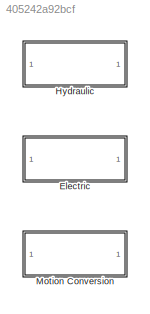
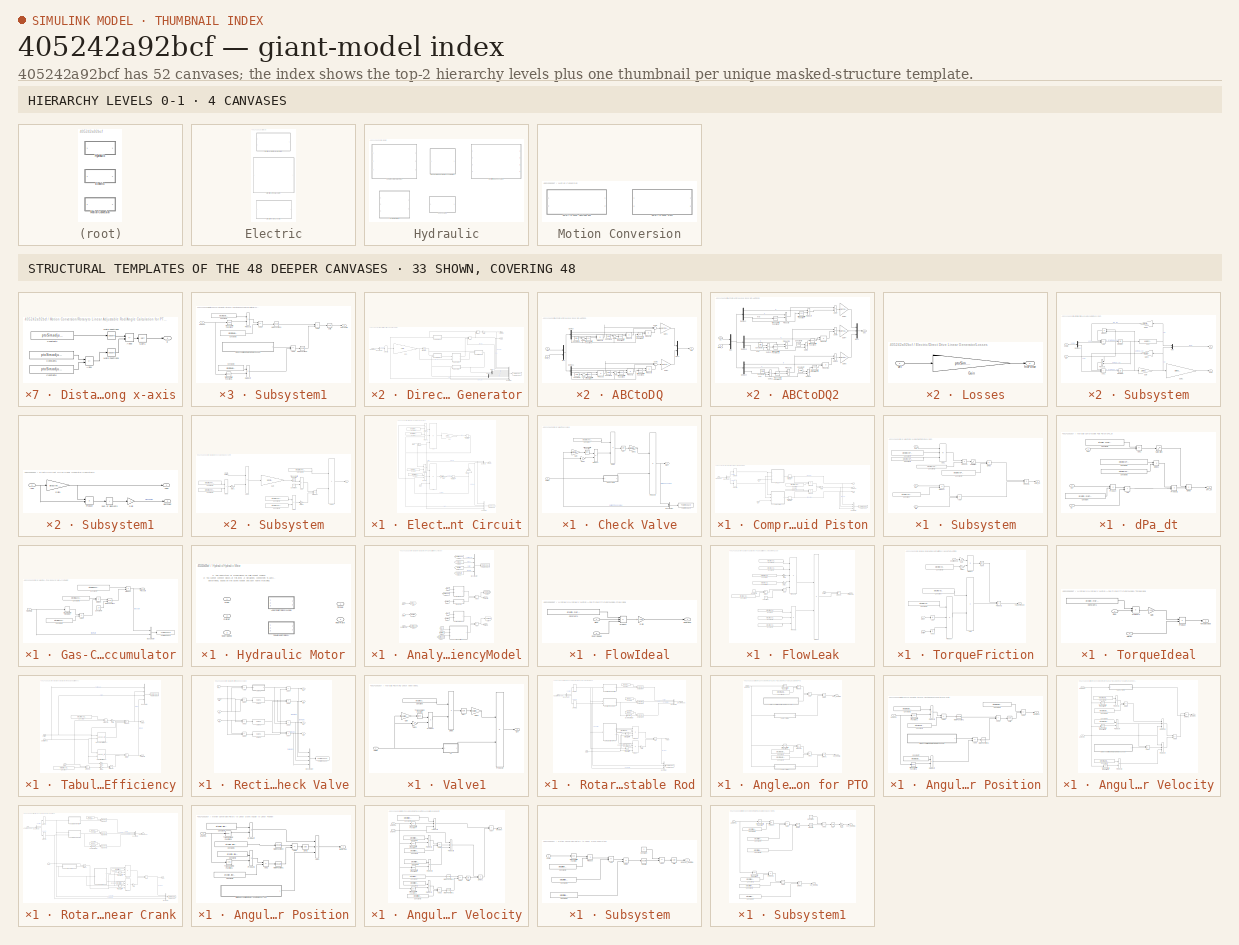
[diagram: thumbnail index - top-2 hierarchy levels (4 canvases) + 33 structural-template representatives of the remaining 48 canvases]
MODEL slx_405242a92bcf
KIND library
CONFIG AbsTol = auto
CONFIG EnableMultiTasking = on
CONFIG FixedStep = auto
CONFIG MaxStep = auto
CONFIG MinStep = auto
CONFIG RelTol = 1e-3
CONFIG SampleTimeConstraint = Unconstrained
CONFIG SolverName = ode45
CONFIG StartTime = 0.0
CONFIG StopTime = 10.0
BLOCK [SubSystem] Electric
  Ports = []
  RequestExecContextInheritance = off
BLOCK [SubSystem] Electric/Direct Drive Linear Generator
  Ports = [1, 1]
  RequestExecContextInheritance = off
BLOCK [SubSystem] Electric/Direct Drive Linear Generator/ABCtoDQ
  Ports = [2, 1]
  RequestExecContextInheritance = off
BLOCK [Inport] Electric/Direct Drive Linear Generator/ABCtoDQ/ABC
  Port = 2
BLOCK [Constant] Electric/Direct Drive Linear Generator/ABCtoDQ/Constant1
  Value = 2*pi/3
BLOCK [Constant] Electric/Direct Drive Linear Generator/ABCtoDQ/Constant2
  Value = 2*pi/3
BLOCK [Constant] Electric/Direct Drive Linear Generator/ABCtoDQ/Constant3
  Value = 2*pi/3
BLOCK [Constant] Electric/Direct Drive Linear Generator/ABCtoDQ/Constant4
  Value = 2*pi/3
BLOCK [Outport] Electric/Direct Drive Linear Generator/ABCtoDQ/DQ
BLOCK [Demux] Electric/Direct Drive Linear Generator/ABCtoDQ/Demux
  DisplayOption = none
  Ports = [1, 4]
BLOCK [Demux] Electric/Direct Drive Linear Generator/ABCtoDQ/Demux1
  DisplayOption = none
  Ports = [1, 4]
BLOCK [Gain] Electric/Direct Drive Linear Generator/ABCtoDQ/Gain1
  Gain = sqrt(2/3)
  OutDataTypeStr = Inherit: Same as input
  ParamDataTypeStr = Inherit: Same as input
  SaturateOnIntegerOverflow = on
BLOCK [Gain] Electric/Direct Drive Linear Generator/ABCtoDQ/Gain2
  Gain = sqrt(2/3)
  OutDataTypeStr = Inherit: Same as input
  ParamDataTypeStr = Inherit: Same as input
  SaturateOnIntegerOverflow = on
BLOCK [Mux] Electric/Direct Drive Linear Generator/ABCtoDQ/Mux
  DisplayOption = bar
  Inputs = 2
  Ports = [2, 1]
BLOCK [Mux] Electric/Direct Drive Linear Generator/ABCtoDQ/Mux1
  DisplayOption = bar
  Inputs = 2
  Ports = [2, 1]
BLOCK [Product] Electric/Direct Drive Linear Generator/ABCtoDQ/Product1
  InputSameDT = on
  OutDataTypeStr = Inherit: Same as first input
  Ports = [2, 1]
  SaturateOnIntegerOverflow = on
BLOCK [Product] Electric/Direct Drive Linear Generator/ABCtoDQ/Product2
  InputSameDT = on
  OutDataTypeStr = Inherit: Same as first input
  Ports = [2, 1]
  SaturateOnIntegerOverflow = on
BLOCK [Product] Electric/Direct Drive Linear Generator/ABCtoDQ/Product3
  InputSameDT = on
  OutDataTypeStr = Inherit: Same as first input
  Ports = [2, 1]
  SaturateOnIntegerOverflow = on
BLOCK [Product] Electric/Direct Drive Linear Generator/ABCtoDQ/Product4
  InputSameDT = on
  OutDataTypeStr = Inherit: Same as first input
  Ports = [2, 1]
  SaturateOnIntegerOverflow = on
BLOCK [Product] Electric/Direct Drive Linear Generator/ABCtoDQ/Product5
  InputSameDT = on
  OutDataTypeStr = Inherit: Same as first input
  Ports = [2, 1]
  SaturateOnIntegerOverflow = on
BLOCK [Product] Electric/Direct Drive Linear Generator/ABCtoDQ/Product6
  InputSameDT = on
  OutDataTypeStr = Inherit: Same as first input
  Ports = [2, 1]
  SaturateOnIntegerOverflow = on
BLOCK [Sum] Electric/Direct Drive Linear Generator/ABCtoDQ/Sum1
  InputSameDT = on
  Inputs = |++
  OutDataTypeStr = Inherit: Same as first input
  Ports = [2, 1]
  SaturateOnIntegerOverflow = on
BLOCK [Sum] Electric/Direct Drive Linear Generator/ABCtoDQ/Sum2
  InputSameDT = on
  Inputs = |-+
  OutDataTypeStr = Inherit: Same as first input
  Ports = [2, 1]
  SaturateOnIntegerOverflow = on
BLOCK [Sum] Electric/Direct Drive Linear Generator/ABCtoDQ/Sum3
  InputSameDT = on
  Inputs = ---
  OutDataTypeStr = Inherit: Same as first input
  Ports = [3, 1]
  SaturateOnIntegerOverflow = on
BLOCK [Sum] Electric/Direct Drive Linear Generator/ABCtoDQ/Sum4
  InputSameDT = on
  Inputs = |++
  OutDataTypeStr = Inherit: Same as first input
  Ports = [2, 1]
  SaturateOnIntegerOverflow = on
BLOCK [Sum] Electric/Direct Drive Linear Generator/ABCtoDQ/Sum5
  InputSameDT = on
  Inputs = |-+
  OutDataTypeStr = Inherit: Same as first input
  Ports = [2, 1]
  SaturateOnIntegerOverflow = on
BLOCK [Sum] Electric/Direct Drive Linear Generator/ABCtoDQ/Sum6
  InputSameDT = on
  Inputs = +++
  OutDataTypeStr = Inherit: Same as first input
  Ports = [3, 1]
  SaturateOnIntegerOverflow = on
BLOCK [Trigonometry] Electric/Direct Drive Linear Generator/ABCtoDQ/Trigonometric Function1
  Ports = [1, 1]
BLOCK [Trigonometry] Electric/Direct Drive Linear Generator/ABCtoDQ/Trigonometric Function2
  Ports = [1, 1]
BLOCK [Trigonometry] Electric/Direct Drive Linear Generator/ABCtoDQ/Trigonometric Function3
  Operator = cos
  Ports = [1, 1]
BLOCK [Trigonometry] Electric/Direct Drive Linear Generator/ABCtoDQ/Trigonometric Function4
  Operator = cos
  Ports = [1, 1]
BLOCK [Trigonometry] Electric/Direct Drive Linear Generator/ABCtoDQ/Trigonometric Function5
  Operator = cos
  Ports = [1, 1]
BLOCK [Trigonometry] Electric/Direct Drive Linear Generator/ABCtoDQ/Trigonometric Function6
  Ports = [1, 1]
BLOCK [Inport] Electric/Direct Drive Linear Generator/ABCtoDQ/theta_d
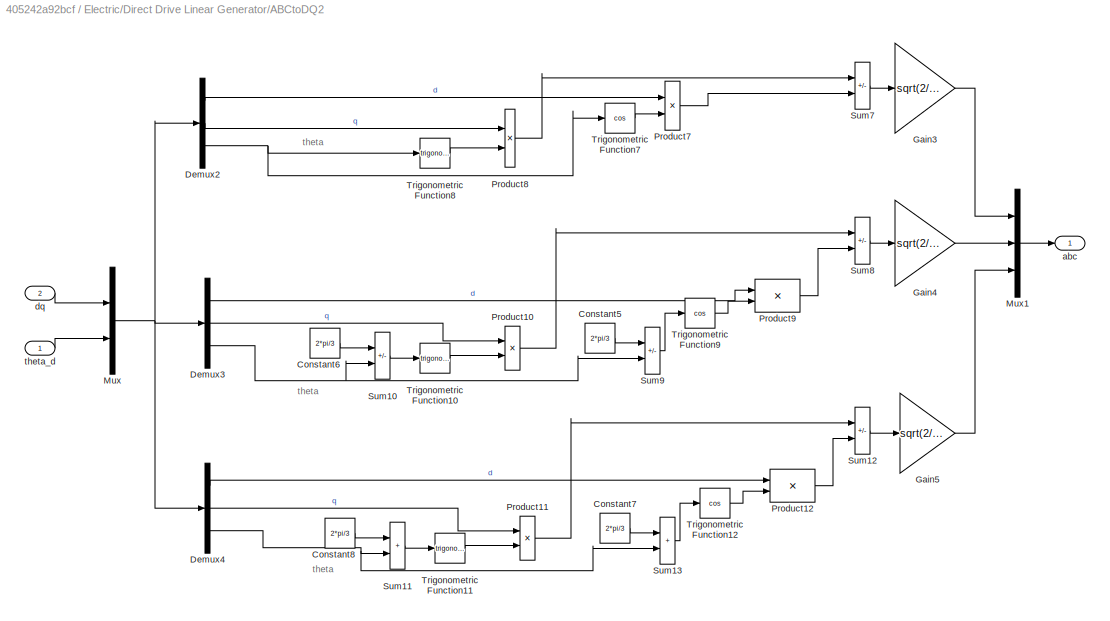
BLOCK [SubSystem] Electric/Direct Drive Linear Generator/ABCtoDQ2
  Ports = [2, 1]
  RequestExecContextInheritance = off
BLOCK [Constant] Electric/Direct Drive Linear Generator/ABCtoDQ2/Constant5
  Value = 2*pi/3
BLOCK [Constant] Electric/Direct Drive Linear Generator/ABCtoDQ2/Constant6
  Value = 2*pi/3
BLOCK [Constant] Electric/Direct Drive Linear Generator/ABCtoDQ2/Constant7
  Value = 2*pi/3
BLOCK [Constant] Electric/Direct Drive Linear Generator/ABCtoDQ2/Constant8
  Value = 2*pi/3
BLOCK [Demux] Electric/Direct Drive Linear Generator/ABCtoDQ2/Demux2
  DisplayOption = none
  Outputs = 3
  Ports = [1, 3]
BLOCK [Demux] Electric/Direct Drive Linear Generator/ABCtoDQ2/Demux3
  DisplayOption = none
  Outputs = 3
  Ports = [1, 3]
BLOCK [Demux] Electric/Direct Drive Linear Generator/ABCtoDQ2/Demux4
  DisplayOption = none
  Outputs = 3
  Ports = [1, 3]
BLOCK [Gain] Electric/Direct Drive Linear Generator/ABCtoDQ2/Gain3
  Gain = sqrt(2/3)
  OutDataTypeStr = Inherit: Same as input
  ParamDataTypeStr = Inherit: Same as input
  SaturateOnIntegerOverflow = on
BLOCK [Gain] Electric/Direct Drive Linear Generator/ABCtoDQ2/Gain4
  Gain = sqrt(2/3)
  OutDataTypeStr = Inherit: Same as input
  ParamDataTypeStr = Inherit: Same as input
  SaturateOnIntegerOverflow = on
BLOCK [Gain] Electric/Direct Drive Linear Generator/ABCtoDQ2/Gain5
  Gain = sqrt(2/3)
  OutDataTypeStr = Inherit: Same as input
  ParamDataTypeStr = Inherit: Same as input
  SaturateOnIntegerOverflow = on
BLOCK [Mux] Electric/Direct Drive Linear Generator/ABCtoDQ2/Mux
  DisplayOption = bar
  Inputs = 2
  Ports = [2, 1]
BLOCK [Mux] Electric/Direct Drive Linear Generator/ABCtoDQ2/Mux1
  DisplayOption = bar
  Inputs = 3
  Ports = [3, 1]
BLOCK [Product] Electric/Direct Drive Linear Generator/ABCtoDQ2/Product10
  InputSameDT = on
  OutDataTypeStr = Inherit: Same as first input
  Ports = [2, 1]
  SaturateOnIntegerOverflow = on
BLOCK [Product] Electric/Direct Drive Linear Generator/ABCtoDQ2/Product11
  InputSameDT = on
  OutDataTypeStr = Inherit: Same as first input
  Ports = [2, 1]
  SaturateOnIntegerOverflow = on
BLOCK [Product] Electric/Direct Drive Linear Generator/ABCtoDQ2/Product12
  InputSameDT = on
  OutDataTypeStr = Inherit: Same as first input
  Ports = [2, 1]
  SaturateOnIntegerOverflow = on
BLOCK [Product] Electric/Direct Drive Linear Generator/ABCtoDQ2/Product7
  InputSameDT = on
  OutDataTypeStr = Inherit: Same as first input
  Ports = [2, 1]
  SaturateOnIntegerOverflow = on
BLOCK [Product] Electric/Direct Drive Linear Generator/ABCtoDQ2/Product8
  InputSameDT = on
  OutDataTypeStr = Inherit: Same as first input
  Ports = [2, 1]
  SaturateOnIntegerOverflow = on
BLOCK [Product] Electric/Direct Drive Linear Generator/ABCtoDQ2/Product9
  InputSameDT = on
  OutDataTypeStr = Inherit: Same as first input
  Ports = [2, 1]
  SaturateOnIntegerOverflow = on
BLOCK [Sum] Electric/Direct Drive Linear Generator/ABCtoDQ2/Sum10
  IconShape = rectangular
  InputSameDT = on
  Inputs = -+
  OutDataTypeStr = Inherit: Same as first input
  Ports = [2, 1]
  SaturateOnIntegerOverflow = on
BLOCK [Sum] Electric/Direct Drive Linear Generator/ABCtoDQ2/Sum11
  IconShape = rectangular
  InputSameDT = on
  OutDataTypeStr = Inherit: Same as first input
  Ports = [2, 1]
  SaturateOnIntegerOverflow = on
BLOCK [Sum] Electric/Direct Drive Linear Generator/ABCtoDQ2/Sum12
  IconShape = rectangular
  InputSameDT = on
  Inputs = -+
  OutDataTypeStr = Inherit: Same as first input
  Ports = [2, 1]
  SaturateOnIntegerOverflow = on
BLOCK [Sum] Electric/Direct Drive Linear Generator/ABCtoDQ2/Sum13
  IconShape = rectangular
  InputSameDT = on
  OutDataTypeStr = Inherit: Same as first input
  Ports = [2, 1]
  SaturateOnIntegerOverflow = on
BLOCK [Sum] Electric/Direct Drive Linear Generator/ABCtoDQ2/Sum7
  IconShape = rectangular
  InputSameDT = on
  Inputs = -+
  OutDataTypeStr = Inherit: Same as first input
  Ports = [2, 1]
  SaturateOnIntegerOverflow = on
BLOCK [Sum] Electric/Direct Drive Linear Generator/ABCtoDQ2/Sum8
  IconShape = rectangular
  InputSameDT = on
  Inputs = -+
  OutDataTypeStr = Inherit: Same as first input
  Ports = [2, 1]
  SaturateOnIntegerOverflow = on
BLOCK [Sum] Electric/Direct Drive Linear Generator/ABCtoDQ2/Sum9
  IconShape = rectangular
  InputSameDT = on
  Inputs = -+
  OutDataTypeStr = Inherit: Same as first input
  Ports = [2, 1]
  SaturateOnIntegerOverflow = on
BLOCK [Trigonometry] Electric/Direct Drive Linear Generator/ABCtoDQ2/Trigonometric Function10
  Ports = [1, 1]
BLOCK [Trigonometry] Electric/Direct Drive Linear Generator/ABCtoDQ2/Trigonometric Function11
  Ports = [1, 1]
BLOCK [Trigonometry] Electric/Direct Drive Linear Generator/ABCtoDQ2/Trigonometric Function12
  Operator = cos
  Ports = [1, 1]
BLOCK [Trigonometry] Electric/Direct Drive Linear Generator/ABCtoDQ2/Trigonometric Function7
  Operator = cos
  Ports = [1, 1]
BLOCK [Trigonometry] Electric/Direct Drive Linear Generator/ABCtoDQ2/Trigonometric Function8
  Ports = [1, 1]
BLOCK [Trigonometry] Electric/Direct Drive Linear Generator/ABCtoDQ2/Trigonometric Function9
  Operator = cos
  Ports = [1, 1]
BLOCK [Outport] Electric/Direct Drive Linear Generator/ABCtoDQ2/abc
BLOCK [Inport] Electric/Direct Drive Linear Generator/ABCtoDQ2/dq
  Port = 2
BLOCK [Inport] Electric/Direct Drive Linear Generator/ABCtoDQ2/theta_d
BLOCK [Sum] Electric/Direct Drive Linear Generator/Add
  IconShape = rectangular
  Ports = [2, 1]
BLOCK [BusCreator] Electric/Direct Drive Linear Generator/Bus Creator
  DisplayOption = bar
  InheritFromInputs = on
  Inputs = 11
  Ports = [11, 1]
BLOCK [BusSelector] Electric/Direct Drive Linear Generator/Bus Selector
  OutputSignals = velocity
  Ports = [1, 1]
BLOCK [Demux] Electric/Direct Drive Linear Generator/Demux
  Outputs = 3
  Ports = [1, 3]
BLOCK [Demux] Electric/Direct Drive Linear Generator/Demux1
  Outputs = 3
  Ports = [1, 3]
BLOCK [Outport] Electric/Direct Drive Linear Generator/Force
  NameLocation = right
BLOCK [Gain] Electric/Direct Drive Linear Generator/Gain
  Gain = -1
BLOCK [Gain] Electric/Direct Drive Linear Generator/Gain5
  Gain = 2*pi/(2*ptoSim.directLinearGenerator.tau_p)
BLOCK [Integrator] Electric/Direct Drive Linear Generator/Integrator2
  InitialCondition = ptoSim.directLinearGenerator.theta_d_0
  Ports = [1, 1]
BLOCK [SubSystem] Electric/Direct Drive Linear Generator/Losses
  Ports = [1, 1]
  RequestExecContextInheritance = off
BLOCK [Gain] Electric/Direct Drive Linear Generator/Losses/Gain
  Gain = ptoSim.directLinearGenerator.Bfric
BLOCK [Outport] Electric/Direct Drive Linear Generator/Losses/fricForce
BLOCK [Inport] Electric/Direct Drive Linear Generator/Losses/vel
BLOCK [Product] Electric/Direct Drive Linear Generator/Product
  Ports = [2, 1]
BLOCK [Inport] Electric/Direct Drive Linear Generator/Response
BLOCK [Selector] Electric/Direct Drive Linear Generator/Selector1
  IndexOptions = Index vector (dialog)
  Indices = 3
  InputPortWidth = 6
  OutputSizes = 1
  Ports = [1, 1]
BLOCK [SubSystem] Electric/Direct Drive Linear Generator/Subsystem
  Ports = [2, 2]
  RequestExecContextInheritance = off
BLOCK [Sum] Electric/Direct Drive Linear Generator/Subsystem/Add
  IconShape = rectangular
  Inputs = +-+
  Ports = [3, 1]
BLOCK [Sum] Electric/Direct Drive Linear Generator/Subsystem/Add1
  IconShape = rectangular
  Inputs = --+
  Ports = [3, 1]
BLOCK [Demux] Electric/Direct Drive Linear Generator/Subsystem/Demux2
  DisplayOption = none
  Outputs = 2
  Ports = [1, 2]
BLOCK [Fcn] Electric/Direct Drive Linear Generator/Subsystem/Fcn
  Expr = ( u(1) - ptoSim.directLinearGenerator.lambda_fd ) / ptoSim.directLinearGenerator.Ls
BLOCK [Outport] Electric/Direct Drive Linear Generator/Subsystem/Fem
BLOCK [Gain] Electric/Direct Drive Linear Generator/Subsystem/Gain
  Gain = 1/ptoSim.directLinearGenerator.Ls
BLOCK [Gain] Electric/Direct Drive Linear Generator/Subsystem/Gain1
  Gain = pi/ptoSim.directLinearGenerator.tau_p*ptoSim.directLinearGenerator.lambda_fd
BLOCK [Gain] Electric/Direct Drive Linear Generator/Subsystem/Gain2
  Gain = ptoSim.directLinearGenerator.Rs
BLOCK [Gain] Electric/Direct Drive Linear Generator/Subsystem/Gain3
  Gain = ptoSim.directLinearGenerator.Rs
BLOCK [Integrator] Electric/Direct Drive Linear Generator/Subsystem/Integrator
  InitialCondition = ptoSim.directLinearGenerator.lambda_sd_0
  Ports = [1, 1]
BLOCK [Integrator] Electric/Direct Drive Linear Generator/Subsystem/Integrator1
  InitialCondition = ptoSim.directLinearGenerator.lambda_sq_0
  Ports = [1, 1]
BLOCK [Mux] Electric/Direct Drive Linear Generator/Subsystem/Mux
  DisplayOption = bar
  Inputs = 2
  Ports = [2, 1]
BLOCK [Product] Electric/Direct Drive Linear Generator/Subsystem/Product
  Ports = [2, 1]
  RndMeth = Zero
BLOCK [Product] Electric/Direct Drive Linear Generator/Subsystem/Product1
  Ports = [2, 1]
  RndMeth = Zero
BLOCK [Outport] Electric/Direct Drive Linear Generator/Subsystem/isdq
  Port = 2
BLOCK [Inport] Electric/Direct Drive Linear Generator/Subsystem/vsdq
BLOCK [Inport] Electric/Direct Drive Linear Generator/Subsystem/wd
  Port = 2
BLOCK [SubSystem] Electric/Direct Drive Linear Generator/Subsystem1
  NameLocation = top
  Ports = [1, 2]
  RequestExecContextInheritance = off
BLOCK [Gain] Electric/Direct Drive Linear Generator/Subsystem1/Gain
  Gain = -1
BLOCK [Gain] Electric/Direct Drive Linear Generator/Subsystem1/Gain1
  Gain = ptoSim.directLinearGenerator.Rload
BLOCK [Inport] Electric/Direct Drive Linear Generator/Subsystem1/Iabc
BLOCK [Product] Electric/Direct Drive Linear Generator/Subsystem1/Product
  Ports = [2, 1]
BLOCK [Sum] Electric/Direct Drive Linear Generator/Subsystem1/Sum of Elements
  IconShape = rectangular
  Inputs = +
  Ports = [1, 1]
BLOCK [Outport] Electric/Direct Drive Linear Generator/Subsystem1/Vabc
BLOCK [Outport] Electric/Direct Drive Linear Generator/Subsystem1/elecPower
  Port = 2
BLOCK [Terminator] Electric/Direct Drive Linear Generator/Terminator
BLOCK [ToWorkspace] Electric/Direct Drive Linear Generator/To Workspace
  FixptAsFi = on
  MaxDataPoints = inf
  Ports = [1]
  SampleTime = simu.dtOut
  SaveFormat = Structure With Time
  VariableName = ptoSim1_out
BLOCK [SubSystem] Electric/Direct Drive Rotary Generator
  Ports = [1, 1]
  RequestExecContextInheritance = off
BLOCK [SubSystem] Electric/Direct Drive Rotary Generator/ABCtoDQ
  AncestorBlock = PTOSim_Lib/Electric/Direct Drive Linear Generator/ABCtoDQ
  Ports = [2, 1]
  RequestExecContextInheritance = off
BLOCK [Inport] Electric/Direct Drive Rotary Generator/ABCtoDQ/ABC
  Port = 2
BLOCK [Constant] Electric/Direct Drive Rotary Generator/ABCtoDQ/Constant1
  Value = 2*pi/3
BLOCK [Constant] Electric/Direct Drive Rotary Generator/ABCtoDQ/Constant2
  Value = 2*pi/3
BLOCK [Constant] Electric/Direct Drive Rotary Generator/ABCtoDQ/Constant3
  Value = 2*pi/3
BLOCK [Constant] Electric/Direct Drive Rotary Generator/ABCtoDQ/Constant4
  Value = 2*pi/3
BLOCK [Outport] Electric/Direct Drive Rotary Generator/ABCtoDQ/DQ
BLOCK [Demux] Electric/Direct Drive Rotary Generator/ABCtoDQ/Demux
  DisplayOption = none
  Ports = [1, 4]
BLOCK [Demux] Electric/Direct Drive Rotary Generator/ABCtoDQ/Demux1
  DisplayOption = none
  Ports = [1, 4]
BLOCK [Gain] Electric/Direct Drive Rotary Generator/ABCtoDQ/Gain1
  Gain = sqrt(2/3)
  OutDataTypeStr = Inherit: Same as input
  ParamDataTypeStr = Inherit: Same as input
  SaturateOnIntegerOverflow = on
BLOCK [Gain] Electric/Direct Drive Rotary Generator/ABCtoDQ/Gain2
  Gain = sqrt(2/3)
  OutDataTypeStr = Inherit: Same as input
  ParamDataTypeStr = Inherit: Same as input
  SaturateOnIntegerOverflow = on
BLOCK [Mux] Electric/Direct Drive Rotary Generator/ABCtoDQ/Mux
  DisplayOption = bar
  Inputs = 2
  Ports = [2, 1]
BLOCK [Mux] Electric/Direct Drive Rotary Generator/ABCtoDQ/Mux1
  DisplayOption = bar
  Inputs = 2
  Ports = [2, 1]
BLOCK [Product] Electric/Direct Drive Rotary Generator/ABCtoDQ/Product1
  InputSameDT = on
  OutDataTypeStr = Inherit: Same as first input
  Ports = [2, 1]
  SaturateOnIntegerOverflow = on
BLOCK [Product] Electric/Direct Drive Rotary Generator/ABCtoDQ/Product2
  InputSameDT = on
  OutDataTypeStr = Inherit: Same as first input
  Ports = [2, 1]
  SaturateOnIntegerOverflow = on
BLOCK [Product] Electric/Direct Drive Rotary Generator/ABCtoDQ/Product3
  InputSameDT = on
  OutDataTypeStr = Inherit: Same as first input
  Ports = [2, 1]
  SaturateOnIntegerOverflow = on
BLOCK [Product] Electric/Direct Drive Rotary Generator/ABCtoDQ/Product4
  InputSameDT = on
  OutDataTypeStr = Inherit: Same as first input
  Ports = [2, 1]
  SaturateOnIntegerOverflow = on
BLOCK [Product] Electric/Direct Drive Rotary Generator/ABCtoDQ/Product5
  InputSameDT = on
  OutDataTypeStr = Inherit: Same as first input
  Ports = [2, 1]
  SaturateOnIntegerOverflow = on
BLOCK [Product] Electric/Direct Drive Rotary Generator/ABCtoDQ/Product6
  InputSameDT = on
  OutDataTypeStr = Inherit: Same as first input
  Ports = [2, 1]
  SaturateOnIntegerOverflow = on
BLOCK [Sum] Electric/Direct Drive Rotary Generator/ABCtoDQ/Sum1
  InputSameDT = on
  Inputs = |++
  OutDataTypeStr = Inherit: Same as first input
  Ports = [2, 1]
  SaturateOnIntegerOverflow = on
BLOCK [Sum] Electric/Direct Drive Rotary Generator/ABCtoDQ/Sum2
  InputSameDT = on
  Inputs = |-+
  OutDataTypeStr = Inherit: Same as first input
  Ports = [2, 1]
  SaturateOnIntegerOverflow = on
BLOCK [Sum] Electric/Direct Drive Rotary Generator/ABCtoDQ/Sum3
  InputSameDT = on
  Inputs = ---
  OutDataTypeStr = Inherit: Same as first input
  Ports = [3, 1]
  SaturateOnIntegerOverflow = on
BLOCK [Sum] Electric/Direct Drive Rotary Generator/ABCtoDQ/Sum4
  InputSameDT = on
  Inputs = |++
  OutDataTypeStr = Inherit: Same as first input
  Ports = [2, 1]
  SaturateOnIntegerOverflow = on
BLOCK [Sum] Electric/Direct Drive Rotary Generator/ABCtoDQ/Sum5
  InputSameDT = on
  Inputs = |-+
  OutDataTypeStr = Inherit: Same as first input
  Ports = [2, 1]
  SaturateOnIntegerOverflow = on
BLOCK [Sum] Electric/Direct Drive Rotary Generator/ABCtoDQ/Sum6
  InputSameDT = on
  Inputs = +++
  OutDataTypeStr = Inherit: Same as first input
  Ports = [3, 1]
  SaturateOnIntegerOverflow = on
BLOCK [Trigonometry] Electric/Direct Drive Rotary Generator/ABCtoDQ/Trigonometric Function1
  Ports = [1, 1]
BLOCK [Trigonometry] Electric/Direct Drive Rotary Generator/ABCtoDQ/Trigonometric Function2
  Ports = [1, 1]
BLOCK [Trigonometry] Electric/Direct Drive Rotary Generator/ABCtoDQ/Trigonometric Function3
  Operator = cos
  Ports = [1, 1]
BLOCK [Trigonometry] Electric/Direct Drive Rotary Generator/ABCtoDQ/Trigonometric Function4
  Operator = cos
  Ports = [1, 1]
BLOCK [Trigonometry] Electric/Direct Drive Rotary Generator/ABCtoDQ/Trigonometric Function5
  Operator = cos
  Ports = [1, 1]
BLOCK [Trigonometry] Electric/Direct Drive Rotary Generator/ABCtoDQ/Trigonometric Function6
  Ports = [1, 1]
BLOCK [Inport] Electric/Direct Drive Rotary Generator/ABCtoDQ/theta_d
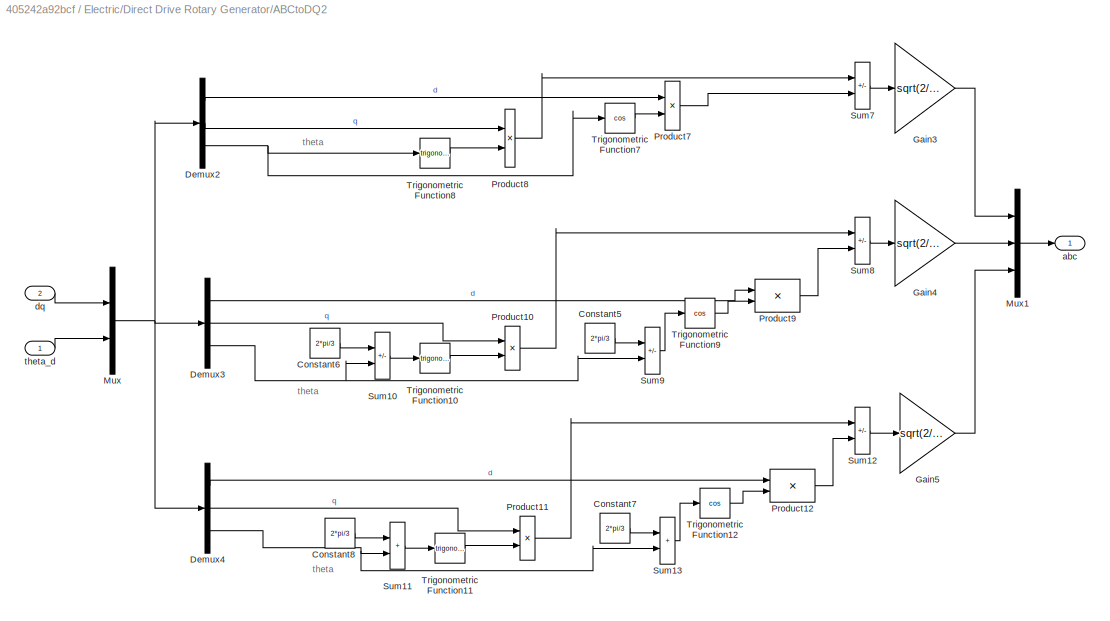
BLOCK [SubSystem] Electric/Direct Drive Rotary Generator/ABCtoDQ2
  AncestorBlock = PTOSim_Lib/Electric/Direct Drive Linear Generator/ABCtoDQ2
  Ports = [2, 1]
  RequestExecContextInheritance = off
BLOCK [Constant] Electric/Direct Drive Rotary Generator/ABCtoDQ2/Constant5
  Value = 2*pi/3
BLOCK [Constant] Electric/Direct Drive Rotary Generator/ABCtoDQ2/Constant6
  Value = 2*pi/3
BLOCK [Constant] Electric/Direct Drive Rotary Generator/ABCtoDQ2/Constant7
  Value = 2*pi/3
BLOCK [Constant] Electric/Direct Drive Rotary Generator/ABCtoDQ2/Constant8
  Value = 2*pi/3
BLOCK [Demux] Electric/Direct Drive Rotary Generator/ABCtoDQ2/Demux2
  DisplayOption = none
  Outputs = 3
  Ports = [1, 3]
BLOCK [Demux] Electric/Direct Drive Rotary Generator/ABCtoDQ2/Demux3
  DisplayOption = none
  Outputs = 3
  Ports = [1, 3]
BLOCK [Demux] Electric/Direct Drive Rotary Generator/ABCtoDQ2/Demux4
  DisplayOption = none
  Outputs = 3
  Ports = [1, 3]
BLOCK [Gain] Electric/Direct Drive Rotary Generator/ABCtoDQ2/Gain3
  Gain = sqrt(2/3)
  OutDataTypeStr = Inherit: Same as input
  ParamDataTypeStr = Inherit: Same as input
  SaturateOnIntegerOverflow = on
BLOCK [Gain] Electric/Direct Drive Rotary Generator/ABCtoDQ2/Gain4
  Gain = sqrt(2/3)
  OutDataTypeStr = Inherit: Same as input
  ParamDataTypeStr = Inherit: Same as input
  SaturateOnIntegerOverflow = on
BLOCK [Gain] Electric/Direct Drive Rotary Generator/ABCtoDQ2/Gain5
  Gain = sqrt(2/3)
  OutDataTypeStr = Inherit: Same as input
  ParamDataTypeStr = Inherit: Same as input
  SaturateOnIntegerOverflow = on
BLOCK [Mux] Electric/Direct Drive Rotary Generator/ABCtoDQ2/Mux
  DisplayOption = bar
  Inputs = 2
  Ports = [2, 1]
BLOCK [Mux] Electric/Direct Drive Rotary Generator/ABCtoDQ2/Mux1
  DisplayOption = bar
  Inputs = 3
  Ports = [3, 1]
BLOCK [Product] Electric/Direct Drive Rotary Generator/ABCtoDQ2/Product10
  InputSameDT = on
  OutDataTypeStr = Inherit: Same as first input
  Ports = [2, 1]
  SaturateOnIntegerOverflow = on
BLOCK [Product] Electric/Direct Drive Rotary Generator/ABCtoDQ2/Product11
  InputSameDT = on
  OutDataTypeStr = Inherit: Same as first input
  Ports = [2, 1]
  SaturateOnIntegerOverflow = on
BLOCK [Product] Electric/Direct Drive Rotary Generator/ABCtoDQ2/Product12
  InputSameDT = on
  OutDataTypeStr = Inherit: Same as first input
  Ports = [2, 1]
  SaturateOnIntegerOverflow = on
BLOCK [Product] Electric/Direct Drive Rotary Generator/ABCtoDQ2/Product7
  InputSameDT = on
  OutDataTypeStr = Inherit: Same as first input
  Ports = [2, 1]
  SaturateOnIntegerOverflow = on
BLOCK [Product] Electric/Direct Drive Rotary Generator/ABCtoDQ2/Product8
  InputSameDT = on
  OutDataTypeStr = Inherit: Same as first input
  Ports = [2, 1]
  SaturateOnIntegerOverflow = on
BLOCK [Product] Electric/Direct Drive Rotary Generator/ABCtoDQ2/Product9
  InputSameDT = on
  OutDataTypeStr = Inherit: Same as first input
  Ports = [2, 1]
  SaturateOnIntegerOverflow = on
BLOCK [Sum] Electric/Direct Drive Rotary Generator/ABCtoDQ2/Sum10
  IconShape = rectangular
  InputSameDT = on
  Inputs = -+
  OutDataTypeStr = Inherit: Same as first input
  Ports = [2, 1]
  SaturateOnIntegerOverflow = on
BLOCK [Sum] Electric/Direct Drive Rotary Generator/ABCtoDQ2/Sum11
  IconShape = rectangular
  InputSameDT = on
  OutDataTypeStr = Inherit: Same as first input
  Ports = [2, 1]
  SaturateOnIntegerOverflow = on
BLOCK [Sum] Electric/Direct Drive Rotary Generator/ABCtoDQ2/Sum12
  IconShape = rectangular
  InputSameDT = on
  Inputs = -+
  OutDataTypeStr = Inherit: Same as first input
  Ports = [2, 1]
  SaturateOnIntegerOverflow = on
BLOCK [Sum] Electric/Direct Drive Rotary Generator/ABCtoDQ2/Sum13
  IconShape = rectangular
  InputSameDT = on
  OutDataTypeStr = Inherit: Same as first input
  Ports = [2, 1]
  SaturateOnIntegerOverflow = on
BLOCK [Sum] Electric/Direct Drive Rotary Generator/ABCtoDQ2/Sum7
  IconShape = rectangular
  InputSameDT = on
  Inputs = -+
  OutDataTypeStr = Inherit: Same as first input
  Ports = [2, 1]
  SaturateOnIntegerOverflow = on
BLOCK [Sum] Electric/Direct Drive Rotary Generator/ABCtoDQ2/Sum8
  IconShape = rectangular
  InputSameDT = on
  Inputs = -+
  OutDataTypeStr = Inherit: Same as first input
  Ports = [2, 1]
  SaturateOnIntegerOverflow = on
BLOCK [Sum] Electric/Direct Drive Rotary Generator/ABCtoDQ2/Sum9
  IconShape = rectangular
  InputSameDT = on
  Inputs = -+
  OutDataTypeStr = Inherit: Same as first input
  Ports = [2, 1]
  SaturateOnIntegerOverflow = on
BLOCK [Trigonometry] Electric/Direct Drive Rotary Generator/ABCtoDQ2/Trigonometric Function10
  Ports = [1, 1]
BLOCK [Trigonometry] Electric/Direct Drive Rotary Generator/ABCtoDQ2/Trigonometric Function11
  Ports = [1, 1]
BLOCK [Trigonometry] Electric/Direct Drive Rotary Generator/ABCtoDQ2/Trigonometric Function12
  Operator = cos
  Ports = [1, 1]
BLOCK [Trigonometry] Electric/Direct Drive Rotary Generator/ABCtoDQ2/Trigonometric Function7
  Operator = cos
  Ports = [1, 1]
BLOCK [Trigonometry] Electric/Direct Drive Rotary Generator/ABCtoDQ2/Trigonometric Function8
  Ports = [1, 1]
BLOCK [Trigonometry] Electric/Direct Drive Rotary Generator/ABCtoDQ2/Trigonometric Function9
  Operator = cos
  Ports = [1, 1]
BLOCK [Outport] Electric/Direct Drive Rotary Generator/ABCtoDQ2/abc
BLOCK [Inport] Electric/Direct Drive Rotary Generator/ABCtoDQ2/dq
  Port = 2
BLOCK [Inport] Electric/Direct Drive Rotary Generator/ABCtoDQ2/theta_d
BLOCK [Sum] Electric/Direct Drive Rotary Generator/Add
  IconShape = rectangular
  Ports = [2, 1]
BLOCK [BusCreator] Electric/Direct Drive Rotary Generator/Bus Creator
  DisplayOption = bar
  InheritFromInputs = on
  Inputs = 11
  Ports = [11, 1]
BLOCK [BusSelector] Electric/Direct Drive Rotary Generator/Bus Selector
  OutputSignals = velocity
  Ports = [1, 1]
BLOCK [Demux] Electric/Direct Drive Rotary Generator/Demux
  Outputs = 3
  Ports = [1, 3]
BLOCK [Demux] Electric/Direct Drive Rotary Generator/Demux1
  Outputs = 3
  Ports = [1, 3]
BLOCK [Gain] Electric/Direct Drive Rotary Generator/Gain
  Gain = -1
BLOCK [Gain] Electric/Direct Drive Rotary Generator/Gain5
  Gain = 2*pi*ptoSim.directRotaryGenerator.radius/(2*ptoSim.directRotaryGenerator.tau_p)
BLOCK [Integrator] Electric/Direct Drive Rotary Generator/Integrator2
  InitialCondition = ptoSim.directRotaryGenerator.theta_d_0
  Ports = [1, 1]
BLOCK [SubSystem] Electric/Direct Drive Rotary Generator/Losses
  AncestorBlock = PTOSim_Lib/Electric/Direct Drive Linear Generator/Losses
  Ports = [1, 1]
  RequestExecContextInheritance = off
BLOCK [Gain] Electric/Direct Drive Rotary Generator/Losses/Gain
  Gain = ptoSim.directRotaryGenerator.Bfric
BLOCK [Outport] Electric/Direct Drive Rotary Generator/Losses/fricTorque
BLOCK [Inport] Electric/Direct Drive Rotary Generator/Losses/vel
BLOCK [Product] Electric/Direct Drive Rotary Generator/Product
  Ports = [2, 1]
BLOCK [Inport] Electric/Direct Drive Rotary Generator/Response
BLOCK [Selector] Electric/Direct Drive Rotary Generator/Selector1
  IndexOptions = Index vector (dialog)
  Indices = 3
  InputPortWidth = 6
  OutputSizes = 1
  Ports = [1, 1]
BLOCK [SubSystem] Electric/Direct Drive Rotary Generator/Subsystem
  AncestorBlock = PTOSim_Lib/Electric/Direct Drive Linear Generator/Subsystem
  Ports = [2, 2]
  RequestExecContextInheritance = off
BLOCK [Sum] Electric/Direct Drive Rotary Generator/Subsystem/Add
  IconShape = rectangular
  Inputs = +-+
  Ports = [3, 1]
BLOCK [Sum] Electric/Direct Drive Rotary Generator/Subsystem/Add1
  IconShape = rectangular
  Inputs = --+
  Ports = [3, 1]
BLOCK [Demux] Electric/Direct Drive Rotary Generator/Subsystem/Demux2
  DisplayOption = none
  Outputs = 2
  Ports = [1, 2]
BLOCK [Fcn] Electric/Direct Drive Rotary Generator/Subsystem/Fcn
  Expr = ( u(1) - ptoSim.directRotaryGenerator.lambda_fd ) / ptoSim.directRotaryGenerator.Ls
BLOCK [Outport] Electric/Direct Drive Rotary Generator/Subsystem/Fem
BLOCK [Gain] Electric/Direct Drive Rotary Generator/Subsystem/Gain
  Gain = 1/ptoSim.directRotaryGenerator.Ls
BLOCK [Gain] Electric/Direct Drive Rotary Generator/Subsystem/Gain1
  Gain = pi*ptoSim.directRotaryGenerator.radius/ptoSim.directRotaryGenerator.tau_p*ptoSim.directRotaryGenerator.lambda_fd
BLOCK [Gain] Electric/Direct Drive Rotary Generator/Subsystem/Gain2
  Gain = ptoSim.directRotaryGenerator.Rs
BLOCK [Gain] Electric/Direct Drive Rotary Generator/Subsystem/Gain3
  Gain = ptoSim.directRotaryGenerator.Rs
BLOCK [Integrator] Electric/Direct Drive Rotary Generator/Subsystem/Integrator
  InitialCondition = ptoSim.directRotaryGenerator.lambda_sd_0
  Ports = [1, 1]
BLOCK [Integrator] Electric/Direct Drive Rotary Generator/Subsystem/Integrator1
  InitialCondition = ptoSim.directRotaryGenerator.lambda_sq_0
  Ports = [1, 1]
BLOCK [Mux] Electric/Direct Drive Rotary Generator/Subsystem/Mux
  DisplayOption = bar
  Inputs = 2
  Ports = [2, 1]
BLOCK [Product] Electric/Direct Drive Rotary Generator/Subsystem/Product
  Ports = [2, 1]
  RndMeth = Zero
BLOCK [Product] Electric/Direct Drive Rotary Generator/Subsystem/Product1
  Ports = [2, 1]
  RndMeth = Zero
BLOCK [Outport] Electric/Direct Drive Rotary Generator/Subsystem/isdq
  Port = 2
BLOCK [Inport] Electric/Direct Drive Rotary Generator/Subsystem/vsdq
BLOCK [Inport] Electric/Direct Drive Rotary Generator/Subsystem/wd
  Port = 2
BLOCK [SubSystem] Electric/Direct Drive Rotary Generator/Subsystem1
  AncestorBlock = PTOSim_Lib/Electric/Direct Drive Linear Generator/Subsystem1
  NameLocation = top
  Ports = [1, 2]
  RequestExecContextInheritance = off
BLOCK [Gain] Electric/Direct Drive Rotary Generator/Subsystem1/Gain
  Gain = -1
BLOCK [Gain] Electric/Direct Drive Rotary Generator/Subsystem1/Gain1
  Gain = ptoSim.directRotaryGenerator.Rload
BLOCK [Inport] Electric/Direct Drive Rotary Generator/Subsystem1/Iabc
BLOCK [Product] Electric/Direct Drive Rotary Generator/Subsystem1/Product
  Ports = [2, 1]
BLOCK [Sum] Electric/Direct Drive Rotary Generator/Subsystem1/Sum of Elements
  IconShape = rectangular
  Inputs = +
  Ports = [1, 1]
BLOCK [Outport] Electric/Direct Drive Rotary Generator/Subsystem1/Vabc
BLOCK [Outport] Electric/Direct Drive Rotary Generator/Subsystem1/elecPower
  Port = 2
BLOCK [Terminator] Electric/Direct Drive Rotary Generator/Terminator
BLOCK [ToWorkspace] Electric/Direct Drive Rotary Generator/To Workspace
  FixptAsFi = on
  MaxDataPoints = inf
  Ports = [1]
  SampleTime = simu.dtOut
  SaveFormat = Structure With Time
  VariableName = ptoSim1_out
BLOCK [Outport] Electric/Direct Drive Rotary Generator/Torque
  NameLocation = right
BLOCK [SubSystem] Electric/Electric Generator Equivalent Circuit
  PortSchema = {"entries":[{"content":{"sides":[{"content":{"connectorIds":["In1"]},"type":"ConnectorPlacement.EquallySpacedRectSide","uuid":"38b15b7d-d952-45b6-9eb0-5d473736364e"},{"content":{"connectorIds":["Out1"],"side":"RIGHT"},"type":"ConnectorPlacement.EquallySpacedRectSide","uuid":"de64adb9-f2de-4dd5-b519-c63af884483d"},{"content":{"connectorIds":["In2"],"side":"TOP"},"type":"ConnectorPlacement.EquallySp...<+389ch>
  Ports = [2, 1]
  RequestExecContextInheritance = off
BLOCK [Sum] Electric/Electric Generator Equivalent Circuit/Add
  IconShape = rectangular
  Inputs = ---
  Ports = [3, 1]
BLOCK [Sum] Electric/Electric Generator Equivalent Circuit/Add1
  IconShape = rectangular
  Inputs = +--
  Ports = [3, 1]
BLOCK [BusCreator] Electric/Electric Generator Equivalent Circuit/Bus Creator
  DisplayOption = bar
  InheritFromInputs = on
  Inputs = 2
  Ports = [2, 1]
BLOCK [BusCreator] Electric/Electric Generator Equivalent Circuit/Bus Creator1
  DisplayOption = bar
  InheritFromInputs = on
  Inputs = 4
  Ports = [4, 1]
BLOCK [Constant] Electric/Electric Generator Equivalent Circuit/Constant
  Value = ptoSim.electricGeneratorEC.Ra
BLOCK [Constant] Electric/Electric Generator Equivalent Circuit/Constant1
  Value = ptoSim.electricGeneratorEC.Ke
BLOCK [Constant] Electric/Electric Generator Equivalent Circuit/Constant2
  Value = ptoSim.electricGeneratorEC.bShaft
BLOCK [Constant] Electric/Electric Generator Equivalent Circuit/Constant3
  Value = ptoSim.electricGeneratorEC.Ke
BLOCK [DiscreteIntegrator] Electric/Electric Generator Equivalent Circuit/Discrete-Time Integrator
  ICPrevOutput = DiscIntNeverNeededParam
  ICPrevScaledInput = DiscIntNeverNeededParam
  InitialCondition = (2*pi/60)*ptoSim.electricGeneratorEC.wShaftIni
  InitialConditionSetting = Auto
  Ports = [1, 1]
  SampleTime = -1
BLOCK [DiscreteIntegrator] Electric/Electric Generator Equivalent Circuit/Discrete-Time Integrator1
  ICPrevOutput = DiscIntNeverNeededParam
  ICPrevScaledInput = DiscIntNeverNeededParam
  InitialCondition = ptoSim.electricGeneratorEC.currentIni
  InitialConditionSetting = Auto
  Ports = [1, 1]
  SampleTime = -1
BLOCK [Outport] Electric/Electric Generator Equivalent Circuit/EMOutput
BLOCK [Gain] Electric/Electric Generator Equivalent Circuit/Gain
  Gain = 1/ptoSim.electricGeneratorEC.La
BLOCK [Gain] Electric/Electric Generator Equivalent Circuit/Gain1
  Gain = 1/ptoSim.electricGeneratorEC.Jem
BLOCK [Gain] Electric/Electric Generator Equivalent Circuit/Gain2
  Gain = 60/(2*pi)
  NameLocation = right
BLOCK [Product] Electric/Electric Generator Equivalent Circuit/Product
  Ports = [2, 1]
BLOCK [Product] Electric/Electric Generator Equivalent Circuit/Product1
  Ports = [2, 1]
BLOCK [Product] Electric/Electric Generator Equivalent Circuit/Product2
  Ports = [2, 1]
BLOCK [Product] Electric/Electric Generator Equivalent Circuit/Product3
  Ports = [2, 1]
BLOCK [Product] Electric/Electric Generator Equivalent Circuit/Product4
  Ports = [2, 1]
BLOCK [Inport] Electric/Electric Generator Equivalent Circuit/Rload
  Port = 2
BLOCK [Inport] Electric/Electric Generator Equivalent Circuit/Tload
BLOCK [ToWorkspace] Electric/Electric Generator Equivalent Circuit/To Workspace
  FixptAsFi = on
  MaxDataPoints = inf
  Ports = [1]
  SampleTime = simu.dtOut
  SaveFormat = Structure With Time
  VariableName = ptoSim1_out
BLOCK [SubSystem] Hydraulic
  Ports = []
  RequestExecContextInheritance = off
BLOCK [SubSystem] Hydraulic/Check Valve
  Ports = [1, 1]
  RequestExecContextInheritance = off
BLOCK [BusCreator] Hydraulic/Check Valve/Bus Creator
  DisplayOption = bar
  InheritFromInputs = on
  Inputs = 2
  Ports = [2, 1]
BLOCK [Constant] Hydraulic/Check Valve/Constant
  Value = ptoSim.checkValve.rho
BLOCK [Inport] Hydraulic/Check Valve/DeltaP
BLOCK [Product] Hydraulic/Check Valve/Divide
  Inputs = /*
  Ports = [2, 1]
BLOCK [Gain] Hydraulic/Check Valve/Gain
  Gain = ptoSim.checkValve.k1
BLOCK [Gain] Hydraulic/Check Valve/Gain1
  Gain = 2
BLOCK [Gain] Hydraulic/Check Valve/Gain2
  Gain = ptoSim.checkValve.Cd
BLOCK [Product] Hydraulic/Check Valve/Product
  Ports = [2, 1]
BLOCK [Product] Hydraulic/Check Valve/Product1
  Ports = [2, 1]
BLOCK [Outport] Hydraulic/Check Valve/Qcv
BLOCK [Sqrt] Hydraulic/Check Valve/Sqrt
BLOCK [SubSystem] Hydraulic/Check Valve/Subsystem
  Ports = [1, 1]
  RequestExecContextInheritance = off
BLOCK [Sum] Hydraulic/Check Valve/Subsystem/Add
  IconShape = rectangular
  Ports = [2, 1]
BLOCK [Sum] Hydraulic/Check Valve/Subsystem/Add1
  IconShape = rectangular
  Inputs = +-
  Ports = [2, 1]
BLOCK [Sum] Hydraulic/Check Valve/Subsystem/Add2
  IconShape = rectangular
  Inputs = +-
  Ports = [2, 1]
BLOCK [Sum] Hydraulic/Check Valve/Subsystem/Add3
  IconShape = rectangular
  Ports = [2, 1]
BLOCK [Sum] Hydraulic/Check Valve/Subsystem/Add4
  IconShape = rectangular
  Ports = [2, 1]
BLOCK [Outport] Hydraulic/Check Valve/Subsystem/Av
BLOCK [Constant] Hydraulic/Check Valve/Subsystem/Constant
BLOCK [Constant] Hydraulic/Check Valve/Subsystem/Constant1
  Value = ptoSim.checkValve.Amax
BLOCK [Constant] Hydraulic/Check Valve/Subsystem/Constant2
  Value = ptoSim.checkValve.Amin
BLOCK [Constant] Hydraulic/Check Valve/Subsystem/Constant3
  Value = ptoSim.checkValve.pMax
BLOCK [Constant] Hydraulic/Check Valve/Subsystem/Constant4
  Value = ptoSim.checkValve.pMin
BLOCK [Constant] Hydraulic/Check Valve/Subsystem/Constant5
  Value = ptoSim.checkValve.Amin
BLOCK [Inport] Hydraulic/Check Valve/Subsystem/DeltaP
BLOCK [Gain] Hydraulic/Check Valve/Subsystem/Gain
  Gain = ptoSim.checkValve.k2
BLOCK [Gain] Hydraulic/Check Valve/Subsystem/Gain1
  Gain = 0.5
BLOCK [Gain] Hydraulic/Check Valve/Subsystem/Gain2
  Gain = 0.5
BLOCK [Product] Hydraulic/Check Valve/Subsystem/Product
  Ports = [2, 1]
BLOCK [Trigonometry] Hydraulic/Check Valve/Subsystem/Trigonometric Function
  Operator = tanh
  Ports = [1, 1]
BLOCK [ToWorkspace] Hydraulic/Check Valve/To Workspace
  FixptAsFi = on
  MaxDataPoints = inf
  Ports = [1]
  SampleTime = -1
  SaveFormat = Structure With Time
  VariableName = ptoSim1_out
BLOCK [Trigonometry] Hydraulic/Check Valve/Trigonometric Function
  Operator = tanh
  Ports = [1, 1]
BLOCK [SubSystem] Hydraulic/Compressible Fluid Piston
  PortSchema = {"entries":[{"content":{"sides":[{"content":{"connectorIds":["In1","In2"]},"type":"ConnectorPlacement.EquallySpacedRectSide","uuid":"572dbc7c-8f4c-46fc-9000-663c89355fbd"},{"content":{"connectorIds":["Out1","Out2","Out3"],"side":"RIGHT"},"type":"ConnectorPlacement.EquallySpacedRectSide","uuid":"3b7821ce-a540-4de1-8f34-0d55375c774c"},{"content":{"connectorIds":["In3"],"side":"TOP"},"type":"Connecto...<+409ch>
  Ports = [3, 3]
  RequestExecContextInheritance = off
BLOCK [Sum] Hydraulic/Compressible Fluid Piston/Add
  IconShape = rectangular
  Inputs = -+
  Ports = [2, 1]
BLOCK [BusCreator] Hydraulic/Compressible Fluid Piston/Bus Creator1
  DisplayOption = bar
  InheritFromInputs = on
  Inputs = 3
  Ports = [3, 1]
BLOCK [BusSelector] Hydraulic/Compressible Fluid Piston/Bus Selector
  OutputSignals = position,velocity
  Ports = [1, 2]
BLOCK [Constant] Hydraulic/Compressible Fluid Piston/Constant
  Value = ptoSim.hydPistonCompressible.Ap_B
BLOCK [Constant] Hydraulic/Compressible Fluid Piston/Constant1
  Value = ptoSim.hydPistonCompressible.Ap_A
BLOCK [DiscreteIntegrator] Hydraulic/Compressible Fluid Piston/Discrete-Time Integrator
  ICPrevOutput = DiscIntNeverNeededParam
  ICPrevScaledInput = DiscIntNeverNeededParam
  InitialCondition = ptoSim.hydPistonCompressible.pAi
  InitialConditionSetting = Auto
  Ports = [1, 1]
  SampleTime = -1
BLOCK [DiscreteIntegrator] Hydraulic/Compressible Fluid Piston/Discrete-Time Integrator1
  ICPrevOutput = DiscIntNeverNeededParam
  ICPrevScaledInput = DiscIntNeverNeededParam
  InitialCondition = ptoSim.hydPistonCompressible.pBi
  InitialConditionSetting = Auto
  Ports = [1, 1]
  SampleTime = -1
BLOCK [Outport] Hydraulic/Compressible Fluid Piston/ForcePTO
BLOCK [Outport] Hydraulic/Compressible Fluid Piston/PA
  Port = 2
BLOCK [Outport] Hydraulic/Compressible Fluid Piston/PB
  Port = 3
BLOCK [Product] Hydraulic/Compressible Fluid Piston/Product1
  Ports = [2, 1]
BLOCK [Product] Hydraulic/Compressible Fluid Piston/Product2
  Ports = [2, 1]
BLOCK [Inport] Hydraulic/Compressible Fluid Piston/QA
BLOCK [Inport] Hydraulic/Compressible Fluid Piston/QB
  Port = 2
BLOCK [Inport] Hydraulic/Compressible Fluid Piston/Response
  Port = 3
BLOCK [Selector] Hydraulic/Compressible Fluid Piston/Selector
  IndexOptions = Index vector (dialog)
  Indices = 3
  InputPortWidth = 6
  OutputSizes = 1
  Ports = [1, 1]
BLOCK [Selector] Hydraulic/Compressible Fluid Piston/Selector1
  IndexOptions = Index vector (dialog)
  Indices = 3
  InputPortWidth = 6
  OutputSizes = 1
  Ports = [1, 1]
BLOCK [SubSystem] Hydraulic/Compressible Fluid Piston/Subsystem
  AncestorBlock = PTOSim_Lib_UpdatedV3/Hydraulic/Compressible Fluid Piston Updated/Subsystem
  Ports = [3, 1]
  RequestExecContextInheritance = off
BLOCK [Sum] Hydraulic/Compressible Fluid Piston/Subsystem/Add
  IconShape = rectangular
  Inputs = -+
  Ports = [2, 1]
BLOCK [Sum] Hydraulic/Compressible Fluid Piston/Subsystem/Add1
  IconShape = rectangular
  Inputs = +-+
  Ports = [3, 1]
BLOCK [Constant] Hydraulic/Compressible Fluid Piston/Subsystem/Constant
  Value = ptoSim.hydPistonCompressible.Ap_B
BLOCK [Constant] Hydraulic/Compressible Fluid Piston/Subsystem/Constant1
  Value = ptoSim.hydPistonCompressible.pistonStroke
BLOCK [Constant] Hydraulic/Compressible Fluid Piston/Subsystem/Constant2
  Value = ptoSim.hydPistonCompressible.Ap_B
BLOCK [Constant] Hydraulic/Compressible Fluid Piston/Subsystem/Constant3
  Value = ptoSim.hydPistonCompressible.bulkModulus
BLOCK [Constant] Hydraulic/Compressible Fluid Piston/Subsystem/Constant4
  Value = ptoSim.hydPistonCompressible.xi_piston
BLOCK [Product] Hydraulic/Compressible Fluid Piston/Subsystem/Divide
  Inputs = /*
  Ports = [2, 1]
BLOCK [Inport] Hydraulic/Compressible Fluid Piston/Subsystem/Pos
BLOCK [Product] Hydraulic/Compressible Fluid Piston/Subsystem/Product
  Ports = [2, 1]
BLOCK [Product] Hydraulic/Compressible Fluid Piston/Subsystem/Product1
  Ports = [2, 1]
BLOCK [Product] Hydraulic/Compressible Fluid Piston/Subsystem/Product2
  Ports = [2, 1]
BLOCK [Inport] Hydraulic/Compressible Fluid Piston/Subsystem/QB
  Port = 3
BLOCK [Saturate] Hydraulic/Compressible Fluid Piston/Subsystem/Saturation
  LowerLimit = 1e-10
  UpperLimit = inf
BLOCK [Inport] Hydraulic/Compressible Fluid Piston/Subsystem/Vel
  Port = 2
BLOCK [Outport] Hydraulic/Compressible Fluid Piston/Subsystem/dPB_dt
BLOCK [ToWorkspace] Hydraulic/Compressible Fluid Piston/To Workspace
  FixptAsFi = on
  MaxDataPoints = inf
  Ports = [1]
  SampleTime = simu.dtOut
  SaveFormat = Structure With Time
  VariableName = ptoSim1_out
BLOCK [SubSystem] Hydraulic/Compressible Fluid Piston/dPa_dt
  AncestorBlock = PTOSim_Lib_UpdatedV3/Hydraulic/Compressible Fluid Piston Updated/dPa_dt
  Ports = [3, 1]
  RequestExecContextInheritance = off
BLOCK [Sum] Hydraulic/Compressible Fluid Piston/dPa_dt/Add
  IconShape = rectangular
  Ports = [2, 1]
BLOCK [Sum] Hydraulic/Compressible Fluid Piston/dPa_dt/Add1
  IconShape = rectangular
  Inputs = +-
  Ports = [2, 1]
BLOCK [Constant] Hydraulic/Compressible Fluid Piston/dPa_dt/Constant
  Value = ptoSim.hydPistonCompressible.Ap_A
BLOCK [Constant] Hydraulic/Compressible Fluid Piston/dPa_dt/Constant1
  Value = ptoSim.hydPistonCompressible.bulkModulus
BLOCK [Constant] Hydraulic/Compressible Fluid Piston/dPa_dt/Constant2
  Value = ptoSim.hydPistonCompressible.xi_piston
BLOCK [Constant] Hydraulic/Compressible Fluid Piston/dPa_dt/Constant3
  Value = ptoSim.hydPistonCompressible.Ap_A
BLOCK [Product] Hydraulic/Compressible Fluid Piston/dPa_dt/Divide
  Inputs = /*
  NameLocation = top
  Ports = [2, 1]
BLOCK [Product] Hydraulic/Compressible Fluid Piston/dPa_dt/Divide1
  Inputs = */
  Ports = [2, 1]
BLOCK [Inport] Hydraulic/Compressible Fluid Piston/dPa_dt/Pos
BLOCK [Product] Hydraulic/Compressible Fluid Piston/dPa_dt/Product
  Ports = [2, 1]
BLOCK [Product] Hydraulic/Compressible Fluid Piston/dPa_dt/Product1
  Ports = [2, 1]
BLOCK [Inport] Hydraulic/Compressible Fluid Piston/dPa_dt/QA
  Port = 3
BLOCK [Saturate] Hydraulic/Compressible Fluid Piston/dPa_dt/Saturation
  LowerLimit = 1e-10
  UpperLimit = inf
BLOCK [Inport] Hydraulic/Compressible Fluid Piston/dPa_dt/Vel
  Port = 2
BLOCK [Outport] Hydraulic/Compressible Fluid Piston/dPa_dt/dPA_dt
BLOCK [SubSystem] Hydraulic/Gas-Charged Hydraulic Accumulator
  Ports = [1, 1]
  RequestExecContextInheritance = off
BLOCK [Sum] Hydraulic/Gas-Charged Hydraulic Accumulator/Add1
  IconShape = rectangular
  Inputs = -+
  Ports = [2, 1]
BLOCK [BusCreator] Hydraulic/Gas-Charged Hydraulic Accumulator/Bus Creator
  DisplayOption = bar
  InheritFromInputs = on
  Inputs = 2
  Ports = [2, 1]
BLOCK [Constant] Hydraulic/Gas-Charged Hydraulic Accumulator/Constant4
  Value = ptoSim.gasHydAccumulator.pIprecharge
BLOCK [Constant] Hydraulic/Gas-Charged Hydraulic Accumulator/Constant5
  Value = ptoSim.gasHydAccumulator.vI0
BLOCK [Constant] Hydraulic/Gas-Charged Hydraulic Accumulator/Constant6
  Value = ptoSim.gasHydAccumulator.vI0
BLOCK [Constant] Hydraulic/Gas-Charged Hydraulic Accumulator/Constant7
  Value = 1.4
BLOCK [DiscreteIntegrator] Hydraulic/Gas-Charged Hydraulic Accumulator/Discrete-Time Integrator1
  ICPrevOutput = DiscIntNeverNeededParam
  ICPrevScaledInput = DiscIntNeverNeededParam
  InitialConditionSetting = Auto
  Ports = [1, 1]
  SampleTime = -1
BLOCK [Product] Hydraulic/Gas-Charged Hydraulic Accumulator/Divide2
  Inputs = */
  Ports = [2, 1]
BLOCK [Inport] Hydraulic/Gas-Charged Hydraulic Accumulator/FlowRate
BLOCK [Math] Hydraulic/Gas-Charged Hydraulic Accumulator/Math Function1
  Operator = pow
  Ports = [2, 1]
BLOCK [Outport] Hydraulic/Gas-Charged Hydraulic Accumulator/Pressure
  NameLocation = right
BLOCK [Product] Hydraulic/Gas-Charged Hydraulic Accumulator/Product
  Ports = [2, 1]
BLOCK [ToWorkspace] Hydraulic/Gas-Charged Hydraulic Accumulator/To Workspace
  FixptAsFi = on
  MaxDataPoints = inf
  Ports = [1]
  SampleTime = simu.dtOut
  SaveFormat = Structure With Time
  VariableName = ptoSim1_out
BLOCK [SubSystem] Hydraulic/Hydraulic Motor
  AllowZeroVariantControls = on
  Ports = [3, 2]
  RequestExecContextInheritance = off
  Variant = on
BLOCK [SubSystem] Hydraulic/Hydraulic Motor/AnalyticalEfficiencyModel
  Ports = [3, 2]
  RequestExecContextInheritance = off
  VariantControl = sv_b1_AnalyticalEfficiency
BLOCK [Sum] Hydraulic/Hydraulic Motor/AnalyticalEfficiencyModel/Add
  IconShape = rectangular
  Inputs = +-
  Ports = [2, 1]
BLOCK [Sum] Hydraulic/Hydraulic Motor/AnalyticalEfficiencyModel/Add1
  IconShape = rectangular
  Ports = [2, 1]
BLOCK [BusCreator] Hydraulic/Hydraulic Motor/AnalyticalEfficiencyModel/Bus Creator
  DisplayOption = bar
  InheritFromInputs = on
  Inputs = 4
  Ports = [4, 1]
BLOCK [Inport] Hydraulic/Hydraulic Motor/AnalyticalEfficiencyModel/DeltaP
  Port = 2
BLOCK [Inport] Hydraulic/Hydraulic Motor/AnalyticalEfficiencyModel/Displ
BLOCK [SubSystem] Hydraulic/Hydraulic Motor/AnalyticalEfficiencyModel/FlowIdeal
  Ports = [2, 1]
  RequestExecContextInheritance = off
BLOCK [Constant] Hydraulic/Hydraulic Motor/AnalyticalEfficiencyModel/FlowIdeal/Constant1
  Value = ptoSim.hydraulicMotor.displacement
BLOCK [Inport] Hydraulic/Hydraulic Motor/AnalyticalEfficiencyModel/FlowIdeal/Displ
BLOCK [Outport] Hydraulic/Hydraulic Motor/AnalyticalEfficiencyModel/FlowIdeal/FlowIdeal
BLOCK [Gain] Hydraulic/Hydraulic Motor/AnalyticalEfficiencyModel/FlowIdeal/Gain
  Gain = 1/((100^3)*60)
BLOCK [Product] Hydraulic/Hydraulic Motor/AnalyticalEfficiencyModel/FlowIdeal/Product
  Inputs = 3
  Ports = [3, 1]
BLOCK [Inport] Hydraulic/Hydraulic Motor/AnalyticalEfficiencyModel/FlowIdeal/ShaftSpeed
  Port = 2
BLOCK [SubSystem] Hydraulic/Hydraulic Motor/AnalyticalEfficiencyModel/FlowLeak
  Ports = [1, 1]
  RequestExecContextInheritance = off
BLOCK [Sum] Hydraulic/Hydraulic Motor/AnalyticalEfficiencyModel/FlowLeak/Add
  IconShape = rectangular
  Inputs = +-
  Ports = [2, 1]
BLOCK [Constant] Hydraulic/Hydraulic Motor/AnalyticalEfficiencyModel/FlowLeak/Constant
BLOCK [Constant] Hydraulic/Hydraulic Motor/AnalyticalEfficiencyModel/FlowLeak/Constant1
  Value = ptoSim.hydraulicMotor.visNominal
BLOCK [Constant] Hydraulic/Hydraulic Motor/AnalyticalEfficiencyModel/FlowLeak/Constant2
  Value = ptoSim.hydraulicMotor.densityNominal
BLOCK [Constant] Hydraulic/Hydraulic Motor/AnalyticalEfficiencyModel/FlowLeak/Constant3
  Value = ptoSim.hydraulicMotor.wNominal
BLOCK [Constant] Hydraulic/Hydraulic Motor/AnalyticalEfficiencyModel/FlowLeak/Constant4
  Value = ptoSim.hydraulicMotor.displacement
BLOCK [Constant] Hydraulic/Hydraulic Motor/AnalyticalEfficiencyModel/FlowLeak/Constant5
BLOCK [Constant] Hydraulic/Hydraulic Motor/AnalyticalEfficiencyModel/FlowLeak/Constant6
  Value = ptoSim.hydraulicMotor.effVolNom
BLOCK [Constant] Hydraulic/Hydraulic Motor/AnalyticalEfficiencyModel/FlowLeak/Constant7
  Value = ptoSim.hydraulicMotor.rho
BLOCK [Constant] Hydraulic/Hydraulic Motor/AnalyticalEfficiencyModel/FlowLeak/Constant8
  Value = ptoSim.hydraulicMotor.viscosity
BLOCK [Constant] Hydraulic/Hydraulic Motor/AnalyticalEfficiencyModel/FlowLeak/Constant9
  Value = ptoSim.hydraulicMotor.deltaPNominal
BLOCK [Inport] Hydraulic/Hydraulic Motor/AnalyticalEfficiencyModel/FlowLeak/DeltaP
BLOCK [Product] Hydraulic/Hydraulic Motor/AnalyticalEfficiencyModel/FlowLeak/Divide
  Inputs = */
  Ports = [2, 1]
BLOCK [Product] Hydraulic/Hydraulic Motor/AnalyticalEfficiencyModel/FlowLeak/Divide1
  Inputs = */
  Ports = [2, 1]
BLOCK [Outport] Hydraulic/Hydraulic Motor/AnalyticalEfficiencyModel/FlowLeak/FlowLeak
BLOCK [Gain] Hydraulic/Hydraulic Motor/AnalyticalEfficiencyModel/FlowLeak/Gain
  Gain = 2*pi/60
BLOCK [Gain] Hydraulic/Hydraulic Motor/AnalyticalEfficiencyModel/FlowLeak/Gain1
  Gain = 1/((100^3)*(2*pi))
BLOCK [Product] Hydraulic/Hydraulic Motor/AnalyticalEfficiencyModel/FlowLeak/Product
  Ports = [2, 1]
BLOCK [Product] Hydraulic/Hydraulic Motor/AnalyticalEfficiencyModel/FlowLeak/Product1
  Inputs = 5
  Ports = [5, 1]
BLOCK [Product] Hydraulic/Hydraulic Motor/AnalyticalEfficiencyModel/FlowLeak/Product2
  Inputs = 3
  Ports = [3, 1]
BLOCK [Outport] Hydraulic/Hydraulic Motor/AnalyticalEfficiencyModel/FlowRate
  Port = 2
BLOCK [From] Hydraulic/Hydraulic Motor/AnalyticalEfficiencyModel/From
  GotoTag = Displ
BLOCK [From] Hydraulic/Hydraulic Motor/AnalyticalEfficiencyModel/From1
  GotoTag = DeltaP
BLOCK [From] Hydraulic/Hydraulic Motor/AnalyticalEfficiencyModel/From10
  GotoTag = DeltaP
BLOCK [From] Hydraulic/Hydraulic Motor/AnalyticalEfficiencyModel/From11
  GotoTag = FlowRate
BLOCK [From] Hydraulic/Hydraulic Motor/AnalyticalEfficiencyModel/From2
  GotoTag = Displ
BLOCK [From] Hydraulic/Hydraulic Motor/AnalyticalEfficiencyModel/From3
  GotoTag = DeltaP
BLOCK [From] Hydraulic/Hydraulic Motor/AnalyticalEfficiencyModel/From4
  GotoTag = ShaftSpeed
BLOCK [From] Hydraulic/Hydraulic Motor/AnalyticalEfficiencyModel/From5
  GotoTag = Displ
BLOCK [From] Hydraulic/Hydraulic Motor/AnalyticalEfficiencyModel/From6
  GotoTag = ShaftSpeed
BLOCK [From] Hydraulic/Hydraulic Motor/AnalyticalEfficiencyModel/From7
  GotoTag = DeltaP
BLOCK [From] Hydraulic/Hydraulic Motor/AnalyticalEfficiencyModel/From8
  GotoTag = ShaftSpeed
BLOCK [From] Hydraulic/Hydraulic Motor/AnalyticalEfficiencyModel/From9
  GotoTag = Torque
BLOCK [Goto] Hydraulic/Hydraulic Motor/AnalyticalEfficiencyModel/Goto
  GotoTag = Displ
BLOCK [Goto] Hydraulic/Hydraulic Motor/AnalyticalEfficiencyModel/Goto1
  GotoTag = DeltaP
BLOCK [Goto] Hydraulic/Hydraulic Motor/AnalyticalEfficiencyModel/Goto2
  GotoTag = ShaftSpeed
BLOCK [Goto] Hydraulic/Hydraulic Motor/AnalyticalEfficiencyModel/Goto3
  GotoTag = FlowRate
BLOCK [Goto] Hydraulic/Hydraulic Motor/AnalyticalEfficiencyModel/Goto4
  GotoTag = Torque
BLOCK [Inport] Hydraulic/Hydraulic Motor/AnalyticalEfficiencyModel/ShaftSpeed
  Port = 3
BLOCK [ToWorkspace] Hydraulic/Hydraulic Motor/AnalyticalEfficiencyModel/To Workspace
  FixptAsFi = on
  MaxDataPoints = inf
  Ports = [1]
  SampleTime = -1
  SaveFormat = Structure With Time
  VariableName = ptoSim1_out
BLOCK [Outport] Hydraulic/Hydraulic Motor/AnalyticalEfficiencyModel/Torque
BLOCK [SubSystem] Hydraulic/Hydraulic Motor/AnalyticalEfficiencyModel/TorqueFriction
  Ports = [3, 1]
  RequestExecContextInheritance = off
BLOCK [Abs] Hydraulic/Hydraulic Motor/AnalyticalEfficiencyModel/TorqueFriction/Abs
  SaturateOnIntegerOverflow = off
BLOCK [Abs] Hydraulic/Hydraulic Motor/AnalyticalEfficiencyModel/TorqueFriction/Abs1
  SaturateOnIntegerOverflow = off
BLOCK [Sum] Hydraulic/Hydraulic Motor/AnalyticalEfficiencyModel/TorqueFriction/Add
  IconShape = rectangular
  Ports = [2, 1]
BLOCK [Constant] Hydraulic/Hydraulic Motor/AnalyticalEfficiencyModel/TorqueFriction/Constant
  Value = ptoSim.hydraulicMotor.torqueNoLoad
BLOCK [Constant] Hydraulic/Hydraulic Motor/AnalyticalEfficiencyModel/TorqueFriction/Constant1
  Value = ptoSim.hydraulicMotor.torqueVsPressure
BLOCK [Constant] Hydraulic/Hydraulic Motor/AnalyticalEfficiencyModel/TorqueFriction/Constant3
  Value = ptoSim.hydraulicMotor.wNominal
BLOCK [Inport] Hydraulic/Hydraulic Motor/AnalyticalEfficiencyModel/TorqueFriction/DeltaP
  Port = 2
BLOCK [Inport] Hydraulic/Hydraulic Motor/AnalyticalEfficiencyModel/TorqueFriction/Displ
BLOCK [Product] Hydraulic/Hydraulic Motor/AnalyticalEfficiencyModel/TorqueFriction/Divide1
  Inputs = */
  Ports = [2, 1]
BLOCK [Gain] Hydraulic/Hydraulic Motor/AnalyticalEfficiencyModel/TorqueFriction/Gain
  Gain = 4
BLOCK [Gain] Hydraulic/Hydraulic Motor/AnalyticalEfficiencyModel/TorqueFriction/Gain1
  Gain = 0.01
BLOCK [Product] Hydraulic/Hydraulic Motor/AnalyticalEfficiencyModel/TorqueFriction/Product
  Inputs = 3
  Ports = [3, 1]
BLOCK [Product] Hydraulic/Hydraulic Motor/AnalyticalEfficiencyModel/TorqueFriction/Product1
  Ports = [2, 1]
BLOCK [Inport] Hydraulic/Hydraulic Motor/AnalyticalEfficiencyModel/TorqueFriction/ShaftSpeed
  Port = 3
BLOCK [Trigonometry] Hydraulic/Hydraulic Motor/AnalyticalEfficiencyModel/TorqueFriction/Tanh
  Operator = tanh
  Ports = [1, 1]
BLOCK [Outport] Hydraulic/Hydraulic Motor/AnalyticalEfficiencyModel/TorqueFriction/TorqueFriccion
BLOCK [SubSystem] Hydraulic/Hydraulic Motor/AnalyticalEfficiencyModel/TorqueIdeal
  Ports = [2, 1]
  RequestExecContextInheritance = off
BLOCK [Constant] Hydraulic/Hydraulic Motor/AnalyticalEfficiencyModel/TorqueIdeal/Constant1
  Value = ptoSim.hydraulicMotor.displacement
BLOCK [Inport] Hydraulic/Hydraulic Motor/AnalyticalEfficiencyModel/TorqueIdeal/DeltaP
  Port = 2
BLOCK [Inport] Hydraulic/Hydraulic Motor/AnalyticalEfficiencyModel/TorqueIdeal/Displ
BLOCK [Gain] Hydraulic/Hydraulic Motor/AnalyticalEfficiencyModel/TorqueIdeal/Gain
  Gain = 1/((100^3)*(2*pi))
BLOCK [Product] Hydraulic/Hydraulic Motor/AnalyticalEfficiencyModel/TorqueIdeal/Product
  Ports = [2, 1]
BLOCK [Product] Hydraulic/Hydraulic Motor/AnalyticalEfficiencyModel/TorqueIdeal/Product1
  Ports = [2, 1]
BLOCK [Outport] Hydraulic/Hydraulic Motor/AnalyticalEfficiencyModel/TorqueIdeal/TorqueIdeal
BLOCK [Inport] Hydraulic/Hydraulic Motor/DeltaP
  Port = 2
BLOCK [Inport] Hydraulic/Hydraulic Motor/Displ
BLOCK [Outport] Hydraulic/Hydraulic Motor/FlowRate
  Port = 2
BLOCK [Inport] Hydraulic/Hydraulic Motor/ShaftSpeed
  Port = 3
BLOCK [SubSystem] Hydraulic/Hydraulic Motor/TabulatedEfficiency
  Ports = [3, 2]
  RequestExecContextInheritance = off
  VariantControl = sv_b1_TabulatedEfficiency
BLOCK [BusCreator] Hydraulic/Hydraulic Motor/TabulatedEfficiency/Bus Creator
  DisplayOption = bar
  InheritFromInputs = on
  Inputs = 4
  Ports = [4, 1]
BLOCK [Constant] Hydraulic/Hydraulic Motor/TabulatedEfficiency/Constant
  Value = ptoSim.hydraulicMotor.displacement
BLOCK [Constant] Hydraulic/Hydraulic Motor/TabulatedEfficiency/Constant2
  Value = ptoSim.hydraulicMotor.displacement
BLOCK [Inport] Hydraulic/Hydraulic Motor/TabulatedEfficiency/DeltaP
  Port = 2
BLOCK [Inport] Hydraulic/Hydraulic Motor/TabulatedEfficiency/Displ
BLOCK [Product] Hydraulic/Hydraulic Motor/TabulatedEfficiency/Divide
  Inputs = /*
  Ports = [2, 1]
BLOCK [Outport] Hydraulic/Hydraulic Motor/TabulatedEfficiency/FlowRate
  Port = 2
BLOCK [Gain] Hydraulic/Hydraulic Motor/TabulatedEfficiency/Gain
  Gain = 1/((100^3)*(2*pi))
BLOCK [Gain] Hydraulic/Hydraulic Motor/TabulatedEfficiency/Gain1
  Gain = 1/((100^3)*(2*pi))
BLOCK [Gain] Hydraulic/Hydraulic Motor/TabulatedEfficiency/Gain2
  Gain = 2*pi/60
BLOCK [Lookup_n-D] Hydraulic/Hydraulic Motor/TabulatedEfficiency/MechanicalEfficiency
  BreakpointsForDimension1 = ptoSim.hydraulicMotor.effTableShaftSpeed
  BreakpointsForDimension2 = ptoSim.hydraulicMotor.effTableDeltaP
  InputPortMap = u0,u1
  InternalRulePriority = Speed
  Ports = [2, 1]
  RndMeth = Simplest
  Table = ptoSim.hydraulicMotor.effTableMechEff
BLOCK [Product] Hydraulic/Hydraulic Motor/TabulatedEfficiency/Product
  Ports = [2, 1]
BLOCK [Product] Hydraulic/Hydraulic Motor/TabulatedEfficiency/Product1
  Inputs = 3
  Ports = [3, 1]
BLOCK [Product] Hydraulic/Hydraulic Motor/TabulatedEfficiency/Product2
  Ports = [2, 1]
BLOCK [Product] Hydraulic/Hydraulic Motor/TabulatedEfficiency/Product4
  Ports = [2, 1]
BLOCK [Inport] Hydraulic/Hydraulic Motor/TabulatedEfficiency/ShaftSpeed
  Port = 3
BLOCK [ToWorkspace] Hydraulic/Hydraulic Motor/TabulatedEfficiency/To Workspace
  FixptAsFi = on
  MaxDataPoints = inf
  Ports = [1]
  SampleTime = -1
  SaveFormat = Structure With Time
  VariableName = ptoSim1_out
BLOCK [Outport] Hydraulic/Hydraulic Motor/TabulatedEfficiency/Torque
BLOCK [Lookup_n-D] Hydraulic/Hydraulic Motor/TabulatedEfficiency/VolumetricEfficiency
  BreakpointsForDimension1 = ptoSim.hydraulicMotor.effTableShaftSpeed
  BreakpointsForDimension2 = ptoSim.hydraulicMotor.effTableDeltaP
  InputPortMap = u0,u1
  InternalRulePriority = Speed
  Ports = [2, 1]
  RndMeth = Simplest
  Table = ptoSim.hydraulicMotor.effTableVolEff
BLOCK [Outport] Hydraulic/Hydraulic Motor/Torque
BLOCK [SubSystem] Hydraulic/Rectifying Check Valve
  Ports = [4, 4]
  RequestExecContextInheritance = off
BLOCK [Sum] Hydraulic/Rectifying Check Valve/Add
  IconShape = rectangular
  Inputs = +-
  Ports = [2, 1]
BLOCK [Sum] Hydraulic/Rectifying Check Valve/Add1
  IconShape = rectangular
  Inputs = +-
  Ports = [2, 1]
BLOCK [Sum] Hydraulic/Rectifying Check Valve/Add2
  IconShape = rectangular
  Inputs = +-
  Ports = [2, 1]
BLOCK [Sum] Hydraulic/Rectifying Check Valve/Add3
  IconShape = rectangular
  Inputs = +-
  Ports = [2, 1]
BLOCK [Sum] Hydraulic/Rectifying Check Valve/Add4
  IconShape = rectangular
  Inputs = -+
  Ports = [2, 1]
BLOCK [Sum] Hydraulic/Rectifying Check Valve/Add5
  IconShape = rectangular
  Inputs = -+
  Ports = [2, 1]
BLOCK [Sum] Hydraulic/Rectifying Check Valve/Add6
  IconShape = rectangular
  Ports = [2, 1]
BLOCK [Sum] Hydraulic/Rectifying Check Valve/Add7
  IconShape = rectangular
  Inputs = --
  Ports = [2, 1]
BLOCK [BusCreator] Hydraulic/Rectifying Check Valve/Bus Creator
  DisplayOption = bar
  InheritFromInputs = on
  Inputs = 4
  Ports = [4, 1]
BLOCK [Inport] Hydraulic/Rectifying Check Valve/PA
BLOCK [Inport] Hydraulic/Rectifying Check Valve/PB
  Port = 2
BLOCK [Inport] Hydraulic/Rectifying Check Valve/PC
  Port = 3
BLOCK [Inport] Hydraulic/Rectifying Check Valve/PD
  Port = 4
BLOCK [Outport] Hydraulic/Rectifying Check Valve/QA
BLOCK [Outport] Hydraulic/Rectifying Check Valve/QB
  Port = 2
BLOCK [Outport] Hydraulic/Rectifying Check Valve/QC
  Port = 3
BLOCK [Outport] Hydraulic/Rectifying Check Valve/QD
  Port = 4
BLOCK [ToWorkspace] Hydraulic/Rectifying Check Valve/To Workspace
  FixptAsFi = on
  MaxDataPoints = inf
  Ports = [1]
  SampleTime = -1
  SaveFormat = Structure With Time
  VariableName = ptoSim1_out
BLOCK [SubSystem] Hydraulic/Rectifying Check Valve/Valve1
  Ports = [1, 1]
  RequestExecContextInheritance = off
BLOCK [SubSystem] Hydraulic/Rectifying Check Valve/Valve1/Av
  Ports = [1, 1]
  RequestExecContextInheritance = off
BLOCK [Sum] Hydraulic/Rectifying Check Valve/Valve1/Av/Add
  IconShape = rectangular
  Ports = [2, 1]
BLOCK [Sum] Hydraulic/Rectifying Check Valve/Valve1/Av/Add1
  IconShape = rectangular
  Inputs = +-
  Ports = [2, 1]
BLOCK [Sum] Hydraulic/Rectifying Check Valve/Valve1/Av/Add2
  IconShape = rectangular
  Inputs = +-
  Ports = [2, 1]
BLOCK [Sum] Hydraulic/Rectifying Check Valve/Valve1/Av/Add3
  IconShape = rectangular
  Ports = [2, 1]
BLOCK [Sum] Hydraulic/Rectifying Check Valve/Valve1/Av/Add4
  IconShape = rectangular
  Ports = [2, 1]
BLOCK [Outport] Hydraulic/Rectifying Check Valve/Valve1/Av/Av
BLOCK [Constant] Hydraulic/Rectifying Check Valve/Valve1/Av/Constant
BLOCK [Constant] Hydraulic/Rectifying Check Valve/Valve1/Av/Constant1
  Value = ptoSim.rectifyingCheckValve.Amax
BLOCK [Constant] Hydraulic/Rectifying Check Valve/Valve1/Av/Constant2
  Value = ptoSim.rectifyingCheckValve.Amin
BLOCK [Constant] Hydraulic/Rectifying Check Valve/Valve1/Av/Constant3
  Value = ptoSim.rectifyingCheckValve.pMax
BLOCK [Constant] Hydraulic/Rectifying Check Valve/Valve1/Av/Constant4
  Value = ptoSim.rectifyingCheckValve.pMin
BLOCK [Constant] Hydraulic/Rectifying Check Valve/Valve1/Av/Constant5
  Value = ptoSim.rectifyingCheckValve.Amin
BLOCK [Inport] Hydraulic/Rectifying Check Valve/Valve1/Av/DeltaP
BLOCK [Gain] Hydraulic/Rectifying Check Valve/Valve1/Av/Gain
  Gain = ptoSim.rectifyingCheckValve.k2
BLOCK [Gain] Hydraulic/Rectifying Check Valve/Valve1/Av/Gain1
  Gain = 0.5
BLOCK [Gain] Hydraulic/Rectifying Check Valve/Valve1/Av/Gain2
  Gain = 0.5
BLOCK [Product] Hydraulic/Rectifying Check Valve/Valve1/Av/Product
  Ports = [2, 1]
BLOCK [Trigonometry] Hydraulic/Rectifying Check Valve/Valve1/Av/Trigonometric Function
  Operator = tanh
  Ports = [1, 1]
BLOCK [Constant] Hydraulic/Rectifying Check Valve/Valve1/Constant
  Value = ptoSim.rectifyingCheckValve.rho
BLOCK [Inport] Hydraulic/Rectifying Check Valve/Valve1/DeltaP
BLOCK [Product] Hydraulic/Rectifying Check Valve/Valve1/Divide
  Inputs = /*
  Ports = [2, 1]
BLOCK [Gain] Hydraulic/Rectifying Check Valve/Valve1/Gain
  Gain = ptoSim.rectifyingCheckValve.k1
BLOCK [Gain] Hydraulic/Rectifying Check Valve/Valve1/Gain1
  Gain = 2
BLOCK [Gain] Hydraulic/Rectifying Check Valve/Valve1/Gain2
  Gain = ptoSim.rectifyingCheckValve.Cd
BLOCK [Product] Hydraulic/Rectifying Check Valve/Valve1/Product
  Ports = [2, 1]
BLOCK [Product] Hydraulic/Rectifying Check Valve/Valve1/Product1
  Ports = [2, 1]
BLOCK [Outport] Hydraulic/Rectifying Check Valve/Valve1/Qcv
BLOCK [Sqrt] Hydraulic/Rectifying Check Valve/Valve1/Sqrt
BLOCK [Trigonometry] Hydraulic/Rectifying Check Valve/Valve1/Trigonometric Function
  Operator = tanh
  Ports = [1, 1]
BLOCK [Reference] Hydraulic/Rectifying Check Valve/Valve2  REF=$bdroot/Hydraulic/Rectifying Check Valve/Valve1
  Ports = [1, 1]
  SourceBlock = $bdroot/Hydraulic/Rectifying Check Valve/Valve1
  SourceType = SubSystem
BLOCK [Reference] Hydraulic/Rectifying Check Valve/Valve3  REF=$bdroot/Hydraulic/Rectifying Check Valve/Valve1
  Ports = [1, 1]
  SourceBlock = $bdroot/Hydraulic/Rectifying Check Valve/Valve1
  SourceType = SubSystem
BLOCK [Reference] Hydraulic/Rectifying Check Valve/Valve4  REF=$bdroot/Hydraulic/Rectifying Check Valve/Valve1
  Ports = [1, 1]
  SourceBlock = $bdroot/Hydraulic/Rectifying Check Valve/Valve1
  SourceType = SubSystem
BLOCK [SubSystem] Motion Conversion
  Ports = []
  RequestExecContextInheritance = off
BLOCK [SubSystem] Motion Conversion/Rotary to Linear Adjustable Rod
  Ports = [2, 2]
  RequestExecContextInheritance = off
BLOCK [Sum] Motion Conversion/Rotary to Linear Adjustable Rod/Add
  IconShape = rectangular
  Ports = [2, 1]
BLOCK [SubSystem] Motion Conversion/Rotary to Linear Adjustable Rod/Angle Calculation for PTO
  Ports = [1, 2]
  RequestExecContextInheritance = off
BLOCK [Sum] Motion Conversion/Rotary to Linear Adjustable Rod/Angle Calculation for PTO/Add
  IconShape = rectangular
  Inputs = +-
  Ports = [2, 1]
BLOCK [Sum] Motion Conversion/Rotary to Linear Adjustable Rod/Angle Calculation for PTO/Add1
  IconShape = rectangular
  Inputs = +-
  Ports = [2, 1]
BLOCK [Constant] Motion Conversion/Rotary to Linear Adjustable Rod/Angle Calculation for PTO/Constant1
  Value = ptoSim.adjustableRod.crank
BLOCK [Constant] Motion Conversion/Rotary to Linear Adjustable Rod/Angle Calculation for PTO/Constant2
  Value = ptoSim.adjustableRod.crank
BLOCK [Constant] Motion Conversion/Rotary to Linear Adjustable Rod/Angle Calculation for PTO/Constant3
  Value = ptoSim.adjustableRod.offset
BLOCK [Outport] Motion Conversion/Rotary to Linear Adjustable Rod/Angle Calculation for PTO/Cos_gamma
BLOCK [SubSystem] Motion Conversion/Rotary to Linear Adjustable Rod/Angle Calculation for PTO/Distance btw flap joint & rod joint along x-axis
  AncestorBlock = PTOSim_Lib/Motion Conversion/Rotary to Linear\nAdjustable Rod/Angular to Linear\nVelocity/Subsystem/Distance btw flap joint & rod joint\nalong x-axis
  Ports = [0, 1]
  RequestExecContextInheritance = off
BLOCK [Sum] Motion Conversion/Rotary to Linear Adjustable Rod/Angle Calculation for PTO/Distance btw flap joint & rod joint along x-axis/Add3
  IconShape = rectangular
  Inputs = +-
  Ports = [2, 1]
BLOCK [Sum] Motion Conversion/Rotary to Linear Adjustable Rod/Angle Calculation for PTO/Distance btw flap joint & rod joint along x-axis/Add4
  IconShape = rectangular
  Inputs = +-
  Ports = [2, 1]
BLOCK [Constant] Motion Conversion/Rotary to Linear Adjustable Rod/Angle Calculation for PTO/Distance btw flap joint & rod joint along x-axis/Constant4
  Value = ptoSim.adjustableRod.rodInit
BLOCK [Constant] Motion Conversion/Rotary to Linear Adjustable Rod/Angle Calculation for PTO/Distance btw flap joint & rod joint along x-axis/Constant5
  Value = ptoSim.adjustableRod.crank
BLOCK [Constant] Motion Conversion/Rotary to Linear Adjustable Rod/Angle Calculation for PTO/Distance btw flap joint & rod joint along x-axis/Constant6
  Value = ptoSim.adjustableRod.offset
BLOCK [Math] Motion Conversion/Rotary to Linear Adjustable Rod/Angle Calculation for PTO/Distance btw flap joint & rod joint along x-axis/Math Function2
  Operator = square
  Ports = [1, 1]
  SignedPower = on
BLOCK [Math] Motion Conversion/Rotary to Linear Adjustable Rod/Angle Calculation for PTO/Distance btw flap joint & rod joint along x-axis/Math Function3
  Operator = square
  Ports = [1, 1]
  SignedPower = on
BLOCK [Sqrt] Motion Conversion/Rotary to Linear Adjustable Rod/Angle Calculation for PTO/Distance btw flap joint & rod joint along x-axis/Sqrt1
BLOCK [Outport] Motion Conversion/Rotary to Linear Adjustable Rod/Angle Calculation for PTO/Distance btw flap joint & rod joint along x-axis/d
BLOCK [Product] Motion Conversion/Rotary to Linear Adjustable Rod/Angle Calculation for PTO/Divide
  Inputs = */
  Ports = [2, 1]
BLOCK [Product] Motion Conversion/Rotary to Linear Adjustable Rod/Angle Calculation for PTO/Divide1
  Inputs = */
  Ports = [2, 1]
BLOCK [Product] Motion Conversion/Rotary to Linear Adjustable Rod/Angle Calculation for PTO/Product
  Ports = [2, 1]
BLOCK [Product] Motion Conversion/Rotary to Linear Adjustable Rod/Angle Calculation for PTO/Product1
  Ports = [2, 1]
BLOCK [Outport] Motion Conversion/Rotary to Linear Adjustable Rod/Angle Calculation for PTO/Sin_gamma
  Port = 2
BLOCK [SubSystem] Motion Conversion/Rotary to Linear Adjustable Rod/Angle Calculation for PTO/Subsystem1
  AncestorBlock = PTOSim_Lib/Motion Conversion/Rotary to Linear\nAdjustable Rod/Angular to Linear\nVelocity/Subsystem
  Ports = [1, 1]
  RequestExecContextInheritance = off
BLOCK [Sum] Motion Conversion/Rotary to Linear Adjustable Rod/Angle Calculation for PTO/Subsystem1/Add2
  IconShape = rectangular
  Inputs = +-
  Ports = [2, 1]
BLOCK [Sum] Motion Conversion/Rotary to Linear Adjustable Rod/Angle Calculation for PTO/Subsystem1/Add5
  IconShape = rectangular
  Ports = [2, 1]
BLOCK [Sum] Motion Conversion/Rotary to Linear Adjustable Rod/Angle Calculation for PTO/Subsystem1/Add6
  IconShape = rectangular
  Inputs = +-
  Ports = [2, 1]
BLOCK [Constant] Motion Conversion/Rotary to Linear Adjustable Rod/Angle Calculation for PTO/Subsystem1/Constant1
  Value = ptoSim.adjustableRod.crank
BLOCK [Constant] Motion Conversion/Rotary to Linear Adjustable Rod/Angle Calculation for PTO/Subsystem1/Constant2
  Value = ptoSim.adjustableRod.crank
BLOCK [Constant] Motion Conversion/Rotary to Linear Adjustable Rod/Angle Calculation for PTO/Subsystem1/Constant3
  Value = ptoSim.adjustableRod.offset
BLOCK [SubSystem] Motion Conversion/Rotary to Linear Adjustable Rod/Angle Calculation for PTO/Subsystem1/Distance btw flap joint & rod joint along x-axis
  Ports = [0, 1]
  RequestExecContextInheritance = off
BLOCK [Sum] Motion Conversion/Rotary to Linear Adjustable Rod/Angle Calculation for PTO/Subsystem1/Distance btw flap joint & rod joint along x-axis/Add3
  IconShape = rectangular
  Inputs = +-
  Ports = [2, 1]
BLOCK [Sum] Motion Conversion/Rotary to Linear Adjustable Rod/Angle Calculation for PTO/Subsystem1/Distance btw flap joint & rod joint along x-axis/Add4
  IconShape = rectangular
  Inputs = +-
  Ports = [2, 1]
BLOCK [Constant] Motion Conversion/Rotary to Linear Adjustable Rod/Angle Calculation for PTO/Subsystem1/Distance btw flap joint & rod joint along x-axis/Constant1
  Value = ptoSim.adjustableRod.crank
BLOCK [Constant] Motion Conversion/Rotary to Linear Adjustable Rod/Angle Calculation for PTO/Subsystem1/Distance btw flap joint & rod joint along x-axis/Constant2
  Value = ptoSim.adjustableRod.rodInit
BLOCK [Constant] Motion Conversion/Rotary to Linear Adjustable Rod/Angle Calculation for PTO/Subsystem1/Distance btw flap joint & rod joint along x-axis/Constant3
  Value = ptoSim.adjustableRod.offset
BLOCK [Math] Motion Conversion/Rotary to Linear Adjustable Rod/Angle Calculation for PTO/Subsystem1/Distance btw flap joint & rod joint along x-axis/Math Function2
  Operator = square
  Ports = [1, 1]
  SignedPower = on
BLOCK [Math] Motion Conversion/Rotary to Linear Adjustable Rod/Angle Calculation for PTO/Subsystem1/Distance btw flap joint & rod joint along x-axis/Math Function3
  Operator = square
  Ports = [1, 1]
  SignedPower = on
BLOCK [Sqrt] Motion Conversion/Rotary to Linear Adjustable Rod/Angle Calculation for PTO/Subsystem1/Distance btw flap joint & rod joint along x-axis/Sqrt1
BLOCK [Outport] Motion Conversion/Rotary to Linear Adjustable Rod/Angle Calculation for PTO/Subsystem1/Distance btw flap joint & rod joint along x-axis/d
BLOCK [Math] Motion Conversion/Rotary to Linear Adjustable Rod/Angle Calculation for PTO/Subsystem1/Math Function1
  Operator = square
  Ports = [1, 1]
  SignedPower = on
BLOCK [Math] Motion Conversion/Rotary to Linear Adjustable Rod/Angle Calculation for PTO/Subsystem1/Math Function6
  Operator = square
  Ports = [1, 1]
  SignedPower = on
BLOCK [Product] Motion Conversion/Rotary to Linear Adjustable Rod/Angle Calculation for PTO/Subsystem1/Product1
  Inputs = **
  Ports = [2, 1]
BLOCK [Product] Motion Conversion/Rotary to Linear Adjustable Rod/Angle Calculation for PTO/Subsystem1/Product7
  Inputs = **
  Ports = [2, 1]
BLOCK [Sqrt] Motion Conversion/Rotary to Linear Adjustable Rod/Angle Calculation for PTO/Subsystem1/Sqrt2
BLOCK [Trigonometry] Motion Conversion/Rotary to Linear Adjustable Rod/Angle Calculation for PTO/Subsystem1/Trigonometric Function1
  Operator = cos
  Ports = [1, 1]
BLOCK [Trigonometry] Motion Conversion/Rotary to Linear Adjustable Rod/Angle Calculation for PTO/Subsystem1/Trigonometric Function5
  Ports = [1, 1]
BLOCK [Inport] Motion Conversion/Rotary to Linear Adjustable Rod/Angle Calculation for PTO/Subsystem1/angPos
BLOCK [Outport] Motion Conversion/Rotary to Linear Adjustable Rod/Angle Calculation for PTO/Subsystem1/rodLength
BLOCK [SubSystem] Motion Conversion/Rotary to Linear Adjustable Rod/Angle Calculation for PTO/Subsystem2
  AncestorBlock = PTOSim_Lib/Motion Conversion/Rotary to Linear\nAdjustable Rod/Angular to Linear\nVelocity/Subsystem
  Ports = [1, 1]
  RequestExecContextInheritance = off
BLOCK [Sum] Motion Conversion/Rotary to Linear Adjustable Rod/Angle Calculation for PTO/Subsystem2/Add2
  IconShape = rectangular
  Inputs = +-
  Ports = [2, 1]
BLOCK [Sum] Motion Conversion/Rotary to Linear Adjustable Rod/Angle Calculation for PTO/Subsystem2/Add5
  IconShape = rectangular
  Ports = [2, 1]
BLOCK [Sum] Motion Conversion/Rotary to Linear Adjustable Rod/Angle Calculation for PTO/Subsystem2/Add6
  IconShape = rectangular
  Inputs = +-
  Ports = [2, 1]
BLOCK [Constant] Motion Conversion/Rotary to Linear Adjustable Rod/Angle Calculation for PTO/Subsystem2/Constant1
  Value = ptoSim.adjustableRod.crank
BLOCK [Constant] Motion Conversion/Rotary to Linear Adjustable Rod/Angle Calculation for PTO/Subsystem2/Constant2
  Value = ptoSim.adjustableRod.crank
BLOCK [Constant] Motion Conversion/Rotary to Linear Adjustable Rod/Angle Calculation for PTO/Subsystem2/Constant3
  Value = ptoSim.adjustableRod.offset
BLOCK [SubSystem] Motion Conversion/Rotary to Linear Adjustable Rod/Angle Calculation for PTO/Subsystem2/Distance btw flap joint & rod joint along x-axis
  Ports = [0, 1]
  RequestExecContextInheritance = off
BLOCK [Sum] Motion Conversion/Rotary to Linear Adjustable Rod/Angle Calculation for PTO/Subsystem2/Distance btw flap joint & rod joint along x-axis/Add3
  IconShape = rectangular
  Inputs = +-
  Ports = [2, 1]
BLOCK [Sum] Motion Conversion/Rotary to Linear Adjustable Rod/Angle Calculation for PTO/Subsystem2/Distance btw flap joint & rod joint along x-axis/Add4
  IconShape = rectangular
  Inputs = +-
  Ports = [2, 1]
BLOCK [Constant] Motion Conversion/Rotary to Linear Adjustable Rod/Angle Calculation for PTO/Subsystem2/Distance btw flap joint & rod joint along x-axis/Constant1
  Value = ptoSim.adjustableRod.crank
BLOCK [Constant] Motion Conversion/Rotary to Linear Adjustable Rod/Angle Calculation for PTO/Subsystem2/Distance btw flap joint & rod joint along x-axis/Constant2
  Value = ptoSim.adjustableRod.rodInit
BLOCK [Constant] Motion Conversion/Rotary to Linear Adjustable Rod/Angle Calculation for PTO/Subsystem2/Distance btw flap joint & rod joint along x-axis/Constant3
  Value = ptoSim.adjustableRod.offset
BLOCK [Math] Motion Conversion/Rotary to Linear Adjustable Rod/Angle Calculation for PTO/Subsystem2/Distance btw flap joint & rod joint along x-axis/Math Function2
  Operator = square
  Ports = [1, 1]
  SignedPower = on
BLOCK [Math] Motion Conversion/Rotary to Linear Adjustable Rod/Angle Calculation for PTO/Subsystem2/Distance btw flap joint & rod joint along x-axis/Math Function3
  Operator = square
  Ports = [1, 1]
  SignedPower = on
BLOCK [Sqrt] Motion Conversion/Rotary to Linear Adjustable Rod/Angle Calculation for PTO/Subsystem2/Distance btw flap joint & rod joint along x-axis/Sqrt1
BLOCK [Outport] Motion Conversion/Rotary to Linear Adjustable Rod/Angle Calculation for PTO/Subsystem2/Distance btw flap joint & rod joint along x-axis/d
BLOCK [Math] Motion Conversion/Rotary to Linear Adjustable Rod/Angle Calculation for PTO/Subsystem2/Math Function1
  Operator = square
  Ports = [1, 1]
  SignedPower = on
BLOCK [Math] Motion Conversion/Rotary to Linear Adjustable Rod/Angle Calculation for PTO/Subsystem2/Math Function6
  Operator = square
  Ports = [1, 1]
  SignedPower = on
BLOCK [Product] Motion Conversion/Rotary to Linear Adjustable Rod/Angle Calculation for PTO/Subsystem2/Product1
  Inputs = **
  Ports = [2, 1]
BLOCK [Product] Motion Conversion/Rotary to Linear Adjustable Rod/Angle Calculation for PTO/Subsystem2/Product7
  Inputs = **
  Ports = [2, 1]
BLOCK [Sqrt] Motion Conversion/Rotary to Linear Adjustable Rod/Angle Calculation for PTO/Subsystem2/Sqrt2
BLOCK [Trigonometry] Motion Conversion/Rotary to Linear Adjustable Rod/Angle Calculation for PTO/Subsystem2/Trigonometric Function1
  Operator = cos
  Ports = [1, 1]
BLOCK [Trigonometry] Motion Conversion/Rotary to Linear Adjustable Rod/Angle Calculation for PTO/Subsystem2/Trigonometric Function5
  Ports = [1, 1]
BLOCK [Inport] Motion Conversion/Rotary to Linear Adjustable Rod/Angle Calculation for PTO/Subsystem2/angPos
BLOCK [Outport] Motion Conversion/Rotary to Linear Adjustable Rod/Angle Calculation for PTO/Subsystem2/rodLength
BLOCK [Trigonometry] Motion Conversion/Rotary to Linear Adjustable Rod/Angle Calculation for PTO/Trigonometric Function
  Ports = [1, 1]
BLOCK [Trigonometry] Motion Conversion/Rotary to Linear Adjustable Rod/Angle Calculation for PTO/Trigonometric Function1
  Operator = cos
  Ports = [1, 1]
BLOCK [Inport] Motion Conversion/Rotary to Linear Adjustable Rod/Angle Calculation for PTO/angPos
BLOCK [SubSystem] Motion Conversion/Rotary to Linear Adjustable Rod/Angular to Linear Position
  Ports = [1, 1]
  RequestExecContextInheritance = off
BLOCK [Sum] Motion Conversion/Rotary to Linear Adjustable Rod/Angular to Linear Position/Add1
  IconShape = rectangular
  Inputs = -+
  Ports = [2, 1]
BLOCK [Sum] Motion Conversion/Rotary to Linear Adjustable Rod/Angular to Linear Position/Add2
  IconShape = rectangular
  Inputs = +-
  Ports = [2, 1]
BLOCK [Sum] Motion Conversion/Rotary to Linear Adjustable Rod/Angular to Linear Position/Add5
  IconShape = rectangular
  Ports = [2, 1]
BLOCK [Sum] Motion Conversion/Rotary to Linear Adjustable Rod/Angular to Linear Position/Add6
  IconShape = rectangular
  Inputs = +-
  Ports = [2, 1]
BLOCK [Constant] Motion Conversion/Rotary to Linear Adjustable Rod/Angular to Linear Position/Constant1
  Value = ptoSim.adjustableRod.rodInit
BLOCK [Constant] Motion Conversion/Rotary to Linear Adjustable Rod/Angular to Linear Position/Constant2
  Value = ptoSim.adjustableRod.crank
BLOCK [Constant] Motion Conversion/Rotary to Linear Adjustable Rod/Angular to Linear Position/Constant3
  Value = ptoSim.adjustableRod.offset
BLOCK [Constant] Motion Conversion/Rotary to Linear Adjustable Rod/Angular to Linear Position/Constant7
  Value = ptoSim.adjustableRod.crank
BLOCK [SubSystem] Motion Conversion/Rotary to Linear Adjustable Rod/Angular to Linear Position/Distance btw flap joint & rod joint along x-axis
  Ports = [0, 1]
  RequestExecContextInheritance = off
BLOCK [Sum] Motion Conversion/Rotary to Linear Adjustable Rod/Angular to Linear Position/Distance btw flap joint & rod joint along x-axis/Add3
  IconShape = rectangular
  Inputs = +-
  Ports = [2, 1]
BLOCK [Sum] Motion Conversion/Rotary to Linear Adjustable Rod/Angular to Linear Position/Distance btw flap joint & rod joint along x-axis/Add4
  IconShape = rectangular
  Inputs = +-
  Ports = [2, 1]
BLOCK [Constant] Motion Conversion/Rotary to Linear Adjustable Rod/Angular to Linear Position/Distance btw flap joint & rod joint along x-axis/Constant4
  Value = ptoSim.adjustableRod.rodInit
BLOCK [Constant] Motion Conversion/Rotary to Linear Adjustable Rod/Angular to Linear Position/Distance btw flap joint & rod joint along x-axis/Constant5
  Value = ptoSim.adjustableRod.crank
BLOCK [Constant] Motion Conversion/Rotary to Linear Adjustable Rod/Angular to Linear Position/Distance btw flap joint & rod joint along x-axis/Constant6
  Value = ptoSim.adjustableRod.offset
BLOCK [Math] Motion Conversion/Rotary to Linear Adjustable Rod/Angular to Linear Position/Distance btw flap joint & rod joint along x-axis/Math Function2
  Operator = square
  Ports = [1, 1]
  SignedPower = on
BLOCK [Math] Motion Conversion/Rotary to Linear Adjustable Rod/Angular to Linear Position/Distance btw flap joint & rod joint along x-axis/Math Function3
  Operator = square
  Ports = [1, 1]
  SignedPower = on
BLOCK [Sqrt] Motion Conversion/Rotary to Linear Adjustable Rod/Angular to Linear Position/Distance btw flap joint & rod joint along x-axis/Sqrt1
BLOCK [Outport] Motion Conversion/Rotary to Linear Adjustable Rod/Angular to Linear Position/Distance btw flap joint & rod joint along x-axis/d
BLOCK [Math] Motion Conversion/Rotary to Linear Adjustable Rod/Angular to Linear Position/Math Function1
  Operator = square
  Ports = [1, 1]
  SignedPower = on
BLOCK [Math] Motion Conversion/Rotary to Linear Adjustable Rod/Angular to Linear Position/Math Function6
  Operator = square
  Ports = [1, 1]
  SignedPower = on
BLOCK [Product] Motion Conversion/Rotary to Linear Adjustable Rod/Angular to Linear Position/Product1
  Inputs = **
  Ports = [2, 1]
BLOCK [Product] Motion Conversion/Rotary to Linear Adjustable Rod/Angular to Linear Position/Product7
  Inputs = **
  Ports = [2, 1]
BLOCK [Sqrt] Motion Conversion/Rotary to Linear Adjustable Rod/Angular to Linear Position/Sqrt2
BLOCK [Trigonometry] Motion Conversion/Rotary to Linear Adjustable Rod/Angular to Linear Position/Trigonometric Function1
  Operator = cos
  Ports = [1, 1]
BLOCK [Trigonometry] Motion Conversion/Rotary to Linear Adjustable Rod/Angular to Linear Position/Trigonometric Function5
  Ports = [1, 1]
BLOCK [Inport] Motion Conversion/Rotary to Linear Adjustable Rod/Angular to Linear Position/angPos
BLOCK [Outport] Motion Conversion/Rotary to Linear Adjustable Rod/Angular to Linear Position/linearPos
BLOCK [SubSystem] Motion Conversion/Rotary to Linear Adjustable Rod/Angular to Linear Velocity
  Ports = [2, 1]
  RequestExecContextInheritance = off
BLOCK [Sum] Motion Conversion/Rotary to Linear Adjustable Rod/Angular to Linear Velocity/Add1
  IconShape = rectangular
  Inputs = +-
  Ports = [2, 1]
BLOCK [Sum] Motion Conversion/Rotary to Linear Adjustable Rod/Angular to Linear Velocity/Add2
  IconShape = rectangular
  Inputs = +-
  Ports = [2, 1]
BLOCK [Sum] Motion Conversion/Rotary to Linear Adjustable Rod/Angular to Linear Velocity/Add3
  IconShape = rectangular
  Inputs = -+
  Ports = [2, 1]
BLOCK [Constant] Motion Conversion/Rotary to Linear Adjustable Rod/Angular to Linear Velocity/Constant1
  Value = ptoSim.adjustableRod.crank
BLOCK [Constant] Motion Conversion/Rotary to Linear Adjustable Rod/Angular to Linear Velocity/Constant2
  Value = ptoSim.adjustableRod.crank
BLOCK [Constant] Motion Conversion/Rotary to Linear Adjustable Rod/Angular to Linear Velocity/Constant3
  Value = ptoSim.adjustableRod.offset
BLOCK [Constant] Motion Conversion/Rotary to Linear Adjustable Rod/Angular to Linear Velocity/Constant7
  Value = ptoSim.adjustableRod.crank
BLOCK [SubSystem] Motion Conversion/Rotary to Linear Adjustable Rod/Angular to Linear Velocity/Distance btw flap joint & rod joint along x-axis
  Ports = [0, 1]
  RequestExecContextInheritance = off
BLOCK [Sum] Motion Conversion/Rotary to Linear Adjustable Rod/Angular to Linear Velocity/Distance btw flap joint & rod joint along x-axis/Add3
  IconShape = rectangular
  Inputs = +-
  Ports = [2, 1]
BLOCK [Sum] Motion Conversion/Rotary to Linear Adjustable Rod/Angular to Linear Velocity/Distance btw flap joint & rod joint along x-axis/Add4
  IconShape = rectangular
  Inputs = +-
  Ports = [2, 1]
BLOCK [Constant] Motion Conversion/Rotary to Linear Adjustable Rod/Angular to Linear Velocity/Distance btw flap joint & rod joint along x-axis/Constant4
  Value = ptoSim.adjustableRod.rodInit
BLOCK [Constant] Motion Conversion/Rotary to Linear Adjustable Rod/Angular to Linear Velocity/Distance btw flap joint & rod joint along x-axis/Constant5
  Value = ptoSim.adjustableRod.crank
BLOCK [Constant] Motion Conversion/Rotary to Linear Adjustable Rod/Angular to Linear Velocity/Distance btw flap joint & rod joint along x-axis/Constant6
  Value = ptoSim.adjustableRod.offset
BLOCK [Math] Motion Conversion/Rotary to Linear Adjustable Rod/Angular to Linear Velocity/Distance btw flap joint & rod joint along x-axis/Math Function2
  Operator = square
  Ports = [1, 1]
  SignedPower = on
BLOCK [Math] Motion Conversion/Rotary to Linear Adjustable Rod/Angular to Linear Velocity/Distance btw flap joint & rod joint along x-axis/Math Function3
  Operator = square
  Ports = [1, 1]
  SignedPower = on
BLOCK [Sqrt] Motion Conversion/Rotary to Linear Adjustable Rod/Angular to Linear Velocity/Distance btw flap joint & rod joint along x-axis/Sqrt1
BLOCK [Outport] Motion Conversion/Rotary to Linear Adjustable Rod/Angular to Linear Velocity/Distance btw flap joint & rod joint along x-axis/d
BLOCK [Product] Motion Conversion/Rotary to Linear Adjustable Rod/Angular to Linear Velocity/Divide1
  Inputs = */
  Ports = [2, 1]
BLOCK [Product] Motion Conversion/Rotary to Linear Adjustable Rod/Angular to Linear Velocity/Product1
  Inputs = **
  Ports = [2, 1]
BLOCK [Product] Motion Conversion/Rotary to Linear Adjustable Rod/Angular to Linear Velocity/Product2
  Inputs = ***
  Ports = [3, 1]
BLOCK [Product] Motion Conversion/Rotary to Linear Adjustable Rod/Angular to Linear Velocity/Product3
  Inputs = **
  Ports = [2, 1]
BLOCK [Product] Motion Conversion/Rotary to Linear Adjustable Rod/Angular to Linear Velocity/Product4
  Inputs = ***
  Ports = [3, 1]
BLOCK [Product] Motion Conversion/Rotary to Linear Adjustable Rod/Angular to Linear Velocity/Product7
  Inputs = **
  Ports = [2, 1]
BLOCK [SubSystem] Motion Conversion/Rotary to Linear Adjustable Rod/Angular to Linear Velocity/Subsystem
  Ports = [1, 1]
  RequestExecContextInheritance = off
BLOCK [Sum] Motion Conversion/Rotary to Linear Adjustable Rod/Angular to Linear Velocity/Subsystem/Add2
  IconShape = rectangular
  Inputs = +-
  Ports = [2, 1]
BLOCK [Sum] Motion Conversion/Rotary to Linear Adjustable Rod/Angular to Linear Velocity/Subsystem/Add5
  IconShape = rectangular
  Ports = [2, 1]
BLOCK [Sum] Motion Conversion/Rotary to Linear Adjustable Rod/Angular to Linear Velocity/Subsystem/Add6
  IconShape = rectangular
  Inputs = +-
  Ports = [2, 1]
BLOCK [Constant] Motion Conversion/Rotary to Linear Adjustable Rod/Angular to Linear Velocity/Subsystem/Constant2
  Value = ptoSim.adjustableRod.crank
BLOCK [Constant] Motion Conversion/Rotary to Linear Adjustable Rod/Angular to Linear Velocity/Subsystem/Constant3
  Value = ptoSim.adjustableRod.offset
BLOCK [Constant] Motion Conversion/Rotary to Linear Adjustable Rod/Angular to Linear Velocity/Subsystem/Constant7
  Value = ptoSim.adjustableRod.crank
BLOCK [SubSystem] Motion Conversion/Rotary to Linear Adjustable Rod/Angular to Linear Velocity/Subsystem/Distance btw flap joint & rod joint along x-axis
  Ports = [0, 1]
  RequestExecContextInheritance = off
BLOCK [Sum] Motion Conversion/Rotary to Linear Adjustable Rod/Angular to Linear Velocity/Subsystem/Distance btw flap joint & rod joint along x-axis/Add3
  IconShape = rectangular
  Inputs = +-
  Ports = [2, 1]
BLOCK [Sum] Motion Conversion/Rotary to Linear Adjustable Rod/Angular to Linear Velocity/Subsystem/Distance btw flap joint & rod joint along x-axis/Add4
  IconShape = rectangular
  Inputs = +-
  Ports = [2, 1]
BLOCK [Constant] Motion Conversion/Rotary to Linear Adjustable Rod/Angular to Linear Velocity/Subsystem/Distance btw flap joint & rod joint along x-axis/Constant4
  Value = ptoSim.adjustableRod.rodInit
BLOCK [Constant] Motion Conversion/Rotary to Linear Adjustable Rod/Angular to Linear Velocity/Subsystem/Distance btw flap joint & rod joint along x-axis/Constant5
  Value = ptoSim.adjustableRod.crank
BLOCK [Constant] Motion Conversion/Rotary to Linear Adjustable Rod/Angular to Linear Velocity/Subsystem/Distance btw flap joint & rod joint along x-axis/Constant6
  Value = ptoSim.adjustableRod.offset
BLOCK [Math] Motion Conversion/Rotary to Linear Adjustable Rod/Angular to Linear Velocity/Subsystem/Distance btw flap joint & rod joint along x-axis/Math Function2
  Operator = square
  Ports = [1, 1]
  SignedPower = on
BLOCK [Math] Motion Conversion/Rotary to Linear Adjustable Rod/Angular to Linear Velocity/Subsystem/Distance btw flap joint & rod joint along x-axis/Math Function3
  Operator = square
  Ports = [1, 1]
  SignedPower = on
BLOCK [Sqrt] Motion Conversion/Rotary to Linear Adjustable Rod/Angular to Linear Velocity/Subsystem/Distance btw flap joint & rod joint along x-axis/Sqrt1
BLOCK [Outport] Motion Conversion/Rotary to Linear Adjustable Rod/Angular to Linear Velocity/Subsystem/Distance btw flap joint & rod joint along x-axis/d
BLOCK [Math] Motion Conversion/Rotary to Linear Adjustable Rod/Angular to Linear Velocity/Subsystem/Math Function1
  Operator = square
  Ports = [1, 1]
  SignedPower = on
BLOCK [Math] Motion Conversion/Rotary to Linear Adjustable Rod/Angular to Linear Velocity/Subsystem/Math Function6
  Operator = square
  Ports = [1, 1]
  SignedPower = on
BLOCK [Product] Motion Conversion/Rotary to Linear Adjustable Rod/Angular to Linear Velocity/Subsystem/Product1
  Inputs = **
  Ports = [2, 1]
BLOCK [Product] Motion Conversion/Rotary to Linear Adjustable Rod/Angular to Linear Velocity/Subsystem/Product7
  Inputs = **
  Ports = [2, 1]
BLOCK [Sqrt] Motion Conversion/Rotary to Linear Adjustable Rod/Angular to Linear Velocity/Subsystem/Sqrt2
BLOCK [Trigonometry] Motion Conversion/Rotary to Linear Adjustable Rod/Angular to Linear Velocity/Subsystem/Trigonometric Function1
  Operator = cos
  Ports = [1, 1]
BLOCK [Trigonometry] Motion Conversion/Rotary to Linear Adjustable Rod/Angular to Linear Velocity/Subsystem/Trigonometric Function5
  Ports = [1, 1]
BLOCK [Inport] Motion Conversion/Rotary to Linear Adjustable Rod/Angular to Linear Velocity/Subsystem/angPos
BLOCK [Outport] Motion Conversion/Rotary to Linear Adjustable Rod/Angular to Linear Velocity/Subsystem/rodLength
BLOCK [Trigonometry] Motion Conversion/Rotary to Linear Adjustable Rod/Angular to Linear Velocity/Trigonometric Function1
  Operator = cos
  Ports = [1, 1]
BLOCK [Trigonometry] Motion Conversion/Rotary to Linear Adjustable Rod/Angular to Linear Velocity/Trigonometric Function2
  Operator = cos
  Ports = [1, 1]
BLOCK [Trigonometry] Motion Conversion/Rotary to Linear Adjustable Rod/Angular to Linear Velocity/Trigonometric Function5
  Ports = [1, 1]
BLOCK [Inport] Motion Conversion/Rotary to Linear Adjustable Rod/Angular to Linear Velocity/angPos
BLOCK [Inport] Motion Conversion/Rotary to Linear Adjustable Rod/Angular to Linear Velocity/angVel
  Port = 2
BLOCK [Outport] Motion Conversion/Rotary to Linear Adjustable Rod/Angular to Linear Velocity/linearVel
BLOCK [Inport] Motion Conversion/Rotary to Linear Adjustable Rod/AngularResponse
BLOCK [Assignment] Motion Conversion/Rotary to Linear Adjustable Rod/Assignment
  IndexOptions = Index vector (dialog)
  Indices = 3
  OutputSizes = 1
  Ports = [2, 1]
BLOCK [Assignment] Motion Conversion/Rotary to Linear Adjustable Rod/Assignment1
  IndexOptions = Index vector (dialog)
  Indices = 3
  OutputSizes = 1
  Ports = [2, 1]
BLOCK [Assignment] Motion Conversion/Rotary to Linear Adjustable Rod/Assignment2
  IndexOptions = Index vector (dialog)
  Indices = 3
  OutputSizes = 1
  Ports = [2, 1]
BLOCK [BusCreator] Motion Conversion/Rotary to Linear Adjustable Rod/Bus Creator
  DisplayOption = bar
  InheritFromInputs = on
  Inputs = 3
  Ports = [3, 1]
BLOCK [BusCreator] Motion Conversion/Rotary to Linear Adjustable Rod/Bus Creator2
  DisplayOption = bar
  InheritFromInputs = on
  Inputs = 3
  Ports = [3, 1]
BLOCK [BusSelector] Motion Conversion/Rotary to Linear Adjustable Rod/Bus Selector
  OutputSignals = position,velocity
  Ports = [1, 2]
BLOCK [Constant] Motion Conversion/Rotary to Linear Adjustable Rod/Constant
  Value = [0 0 0 0 0 0]
BLOCK [Constant] Motion Conversion/Rotary to Linear Adjustable Rod/Constant1
  Value = ptoSim.adjustableRod.crank
BLOCK [Constant] Motion Conversion/Rotary to Linear Adjustable Rod/Constant2
  Value = ptoSim.adjustableRod.crank
BLOCK [Constant] Motion Conversion/Rotary to Linear Adjustable Rod/Constant3
  Value = [0 0 0 0 0 0]
BLOCK [Constant] Motion Conversion/Rotary to Linear Adjustable Rod/Constant4
  Value = [0 0 0 0 0 0]
BLOCK [Reference] Motion Conversion/Rotary to Linear Adjustable Rod/Discrete Derivative  REF=simulink/Discrete/Discrete Derivative
  Ports = [1, 1]
  SourceBlock = simulink/Discrete/Discrete Derivative
  SourceProductBaseCode = SL
  SourceType = Discrete Derivative
BLOCK [Inport] Motion Conversion/Rotary to Linear Adjustable Rod/Force
  Port = 2
BLOCK [Gain] Motion Conversion/Rotary to Linear Adjustable Rod/Gain
  Gain = -1
BLOCK [Outport] Motion Conversion/Rotary to Linear Adjustable Rod/LinearResponse
BLOCK [Product] Motion Conversion/Rotary to Linear Adjustable Rod/Product
  Inputs = 4
  Ports = [4, 1]
BLOCK [Product] Motion Conversion/Rotary to Linear Adjustable Rod/Product1
  Inputs = 4
  Ports = [4, 1]
BLOCK [Selector] Motion Conversion/Rotary to Linear Adjustable Rod/Selector
  IndexOptions = Index vector (dialog)
  Indices = 5
  InputPortWidth = 6
  OutputSizes = 1
  Ports = [1, 1]
BLOCK [Selector] Motion Conversion/Rotary to Linear Adjustable Rod/Selector1
  IndexOptions = Index vector (dialog)
  Indices = 5
  InputPortWidth = 6
  OutputSizes = 1
  Ports = [1, 1]
BLOCK [ToWorkspace] Motion Conversion/Rotary to Linear Adjustable Rod/To Workspace
  Decimation = round(simu.dtOut/simu.dt,0)
  FixptAsFi = on
  MaxDataPoints = inf
  Ports = [1]
  SampleTime = -1
  SaveFormat = Structure With Time
  VariableName = ptoSim1_out
BLOCK [Outport] Motion Conversion/Rotary to Linear Adjustable Rod/Torque
  Port = 2
BLOCK [Trigonometry] Motion Conversion/Rotary to Linear Adjustable Rod/Trigonometric Function
  Ports = [1, 1]
BLOCK [Trigonometry] Motion Conversion/Rotary to Linear Adjustable Rod/Trigonometric Function1
  Operator = cos
  Ports = [1, 1]
BLOCK [SubSystem] Motion Conversion/Rotary to Linear Crank
  Ports = [2, 2]
  RequestExecContextInheritance = off
BLOCK [Sum] Motion Conversion/Rotary to Linear Crank/Add
  IconShape = rectangular
  Ports = [2, 1]
BLOCK [SubSystem] Motion Conversion/Rotary to Linear Crank/Angular to Linear Position
  Ports = [1, 1]
  RequestExecContextInheritance = off
BLOCK [Sum] Motion Conversion/Rotary to Linear Crank/Angular to Linear Position/Add1
  IconShape = rectangular
  Inputs = ++-
  Ports = [3, 1]
BLOCK [Sum] Motion Conversion/Rotary to Linear Crank/Angular to Linear Position/Add2
  IconShape = rectangular
  Inputs = +-
  Ports = [2, 1]
BLOCK [Sum] Motion Conversion/Rotary to Linear Crank/Angular to Linear Position/Add5
  IconShape = rectangular
  Inputs = +-
  Ports = [2, 1]
BLOCK [Constant] Motion Conversion/Rotary to Linear Crank/Angular to Linear Position/Constant1
  Value = ptoSim.linearCrank.rodLength
BLOCK [Constant] Motion Conversion/Rotary to Linear Crank/Angular to Linear Position/Constant2
  Value = ptoSim.linearCrank.crank
BLOCK [Constant] Motion Conversion/Rotary to Linear Crank/Angular to Linear Position/Constant3
  Value = ptoSim.linearCrank.offset
BLOCK [Constant] Motion Conversion/Rotary to Linear Crank/Angular to Linear Position/Constant7
  Value = ptoSim.linearCrank.crank
BLOCK [SubSystem] Motion Conversion/Rotary to Linear Crank/Angular to Linear Position/Initial Distance btw flap joint & crank joint along x-axis
  Ports = [0, 1]
  RequestExecContextInheritance = off
BLOCK [Sum] Motion Conversion/Rotary to Linear Crank/Angular to Linear Position/Initial Distance btw flap joint & crank joint along x-axis/Add3
  IconShape = rectangular
  Inputs = +-
  Ports = [2, 1]
BLOCK [Sum] Motion Conversion/Rotary to Linear Crank/Angular to Linear Position/Initial Distance btw flap joint & crank joint along x-axis/Add4
  IconShape = rectangular
  Inputs = +-
  Ports = [2, 1]
BLOCK [Constant] Motion Conversion/Rotary to Linear Crank/Angular to Linear Position/Initial Distance btw flap joint & crank joint along x-axis/Constant1
  Value = ptoSim.linearCrank.rodLength
BLOCK [Constant] Motion Conversion/Rotary to Linear Crank/Angular to Linear Position/Initial Distance btw flap joint & crank joint along x-axis/Constant5
  Value = ptoSim.linearCrank.crank
BLOCK [Constant] Motion Conversion/Rotary to Linear Crank/Angular to Linear Position/Initial Distance btw flap joint & crank joint along x-axis/Constant6
  Value = ptoSim.linearCrank.offset
BLOCK [Math] Motion Conversion/Rotary to Linear Crank/Angular to Linear Position/Initial Distance btw flap joint & crank joint along x-axis/Math Function2
  Operator = square
  Ports = [1, 1]
  SignedPower = on
BLOCK [Math] Motion Conversion/Rotary to Linear Crank/Angular to Linear Position/Initial Distance btw flap joint & crank joint along x-axis/Math Function3
  Operator = square
  Ports = [1, 1]
  SignedPower = on
BLOCK [Sqrt] Motion Conversion/Rotary to Linear Crank/Angular to Linear Position/Initial Distance btw flap joint & crank joint along x-axis/Sqrt1
BLOCK [Outport] Motion Conversion/Rotary to Linear Crank/Angular to Linear Position/Initial Distance btw flap joint & crank joint along x-axis/d
BLOCK [Math] Motion Conversion/Rotary to Linear Crank/Angular to Linear Position/Math Function1
  Operator = square
  Ports = [1, 1]
  SignedPower = on
BLOCK [Math] Motion Conversion/Rotary to Linear Crank/Angular to Linear Position/Math Function2
  Operator = square
  Ports = [1, 1]
  SignedPower = on
BLOCK [Product] Motion Conversion/Rotary to Linear Crank/Angular to Linear Position/Product1
  Inputs = **
  Ports = [2, 1]
BLOCK [Product] Motion Conversion/Rotary to Linear Crank/Angular to Linear Position/Product7
  Inputs = **
  Ports = [2, 1]
BLOCK [Sqrt] Motion Conversion/Rotary to Linear Crank/Angular to Linear Position/Sqrt2
BLOCK [Trigonometry] Motion Conversion/Rotary to Linear Crank/Angular to Linear Position/Trigonometric Function1
  Operator = cos
  Ports = [1, 1]
BLOCK [Trigonometry] Motion Conversion/Rotary to Linear Crank/Angular to Linear Position/Trigonometric Function5
  Ports = [1, 1]
BLOCK [Inport] Motion Conversion/Rotary to Linear Crank/Angular to Linear Position/angPos
BLOCK [Outport] Motion Conversion/Rotary to Linear Crank/Angular to Linear Position/linearPos
BLOCK [SubSystem] Motion Conversion/Rotary to Linear Crank/Angular to Linear Velocity
  Ports = [2, 1]
  RequestExecContextInheritance = off
BLOCK [Sum] Motion Conversion/Rotary to Linear Crank/Angular to Linear Velocity/Add1
  IconShape = rectangular
  Inputs = +-
  Ports = [2, 1]
BLOCK [Sum] Motion Conversion/Rotary to Linear Crank/Angular to Linear Velocity/Add2
  IconShape = rectangular
  Inputs = +-
  Ports = [2, 1]
BLOCK [Sum] Motion Conversion/Rotary to Linear Crank/Angular to Linear Velocity/Add5
  IconShape = rectangular
  Inputs = +-
  Ports = [2, 1]
BLOCK [Sum] Motion Conversion/Rotary to Linear Crank/Angular to Linear Velocity/Add7
  IconShape = rectangular
  Ports = [2, 1]
BLOCK [Constant] Motion Conversion/Rotary to Linear Crank/Angular to Linear Velocity/Constant1
  Value = ptoSim.linearCrank.rodLength
BLOCK [Constant] Motion Conversion/Rotary to Linear Crank/Angular to Linear Velocity/Constant2
  Value = ptoSim.linearCrank.crank
BLOCK [Constant] Motion Conversion/Rotary to Linear Crank/Angular to Linear Velocity/Constant3
  Value = ptoSim.linearCrank.offset
BLOCK [Constant] Motion Conversion/Rotary to Linear Crank/Angular to Linear Velocity/Constant5
  Value = ptoSim.linearCrank.crank
BLOCK [Constant] Motion Conversion/Rotary to Linear Crank/Angular to Linear Velocity/Constant6
  Value = ptoSim.linearCrank.offset
BLOCK [Constant] Motion Conversion/Rotary to Linear Crank/Angular to Linear Velocity/Constant8
  Value = ptoSim.linearCrank.crank
BLOCK [Constant] Motion Conversion/Rotary to Linear Crank/Angular to Linear Velocity/Constant9
  Value = ptoSim.linearCrank.crank
BLOCK [Product] Motion Conversion/Rotary to Linear Crank/Angular to Linear Velocity/Divide1
  Inputs = */
  Ports = [2, 1]
BLOCK [Math] Motion Conversion/Rotary to Linear Crank/Angular to Linear Velocity/Math Function1
  Operator = square
  Ports = [1, 1]
  SignedPower = on
BLOCK [Math] Motion Conversion/Rotary to Linear Crank/Angular to Linear Velocity/Math Function2
  Operator = square
  Ports = [1, 1]
  SignedPower = on
BLOCK [Product] Motion Conversion/Rotary to Linear Crank/Angular to Linear Velocity/Product1
  Inputs = **
  Ports = [2, 1]
BLOCK [Product] Motion Conversion/Rotary to Linear Crank/Angular to Linear Velocity/Product5
  Inputs = **
  Ports = [2, 1]
BLOCK [Product] Motion Conversion/Rotary to Linear Crank/Angular to Linear Velocity/Product6
  Inputs = ***
  Ports = [3, 1]
BLOCK [Product] Motion Conversion/Rotary to Linear Crank/Angular to Linear Velocity/Product8
  Inputs = ***
  Ports = [3, 1]
BLOCK [Product] Motion Conversion/Rotary to Linear Crank/Angular to Linear Velocity/Product9
  Inputs = **
  Ports = [2, 1]
BLOCK [Sqrt] Motion Conversion/Rotary to Linear Crank/Angular to Linear Velocity/Sqrt2
BLOCK [Trigonometry] Motion Conversion/Rotary to Linear Crank/Angular to Linear Velocity/Trigonometric Function1
  Operator = cos
  Ports = [1, 1]
BLOCK [Trigonometry] Motion Conversion/Rotary to Linear Crank/Angular to Linear Velocity/Trigonometric Function3
  Operator = cos
  Ports = [1, 1]
BLOCK [Trigonometry] Motion Conversion/Rotary to Linear Crank/Angular to Linear Velocity/Trigonometric Function4
  Operator = cos
  Ports = [1, 1]
BLOCK [Trigonometry] Motion Conversion/Rotary to Linear Crank/Angular to Linear Velocity/Trigonometric Function6
  Ports = [1, 1]
BLOCK [Inport] Motion Conversion/Rotary to Linear Crank/Angular to Linear Velocity/angPos
BLOCK [Inport] Motion Conversion/Rotary to Linear Crank/Angular to Linear Velocity/angVel
  Port = 2
BLOCK [Outport] Motion Conversion/Rotary to Linear Crank/Angular to Linear Velocity/linearVel
BLOCK [Inport] Motion Conversion/Rotary to Linear Crank/AngularResponse
BLOCK [Assignment] Motion Conversion/Rotary to Linear Crank/Assignment
  IndexOptions = Index vector (dialog)
  Indices = 3
  OutputSizes = 1
  Ports = [2, 1]
BLOCK [Assignment] Motion Conversion/Rotary to Linear Crank/Assignment1
  IndexOptions = Index vector (dialog)
  Indices = 3
  OutputSizes = 1
  Ports = [2, 1]
BLOCK [Assignment] Motion Conversion/Rotary to Linear Crank/Assignment2
  IndexOptions = Index vector (dialog)
  Indices = 3
  OutputSizes = 1
  Ports = [2, 1]
BLOCK [BusCreator] Motion Conversion/Rotary to Linear Crank/Bus Creator
  DisplayOption = bar
  InheritFromInputs = on
  Inputs = 3
  Ports = [3, 1]
BLOCK [BusCreator] Motion Conversion/Rotary to Linear Crank/Bus Creator2
  DisplayOption = bar
  InheritFromInputs = on
  Inputs = 3
  Ports = [3, 1]
BLOCK [BusSelector] Motion Conversion/Rotary to Linear Crank/Bus Selector
  OutputSignals = position,velocity
  Ports = [1, 2]
BLOCK [Constant] Motion Conversion/Rotary to Linear Crank/Constant
  Value = [0 0 0 0 0 0]
BLOCK [Constant] Motion Conversion/Rotary to Linear Crank/Constant3
  Value = [0 0 0 0 0 0]
BLOCK [Constant] Motion Conversion/Rotary to Linear Crank/Constant4
  Value = [0 0 0 0 0 0]
BLOCK [Constant] Motion Conversion/Rotary to Linear Crank/Constant5
  Value = ptoSim.linearCrank.crank
BLOCK [Constant] Motion Conversion/Rotary to Linear Crank/Constant6
  Value = ptoSim.linearCrank.crank
BLOCK [Reference] Motion Conversion/Rotary to Linear Crank/Discrete Derivative  REF=simulink/Discrete/Discrete Derivative
  Ports = [1, 1]
  SourceBlock = simulink/Discrete/Discrete Derivative
  SourceProductBaseCode = SL
  SourceType = Discrete Derivative
BLOCK [Product] Motion Conversion/Rotary to Linear Crank/Divide3
  Inputs = */
  Ports = [2, 1]
BLOCK [Inport] Motion Conversion/Rotary to Linear Crank/Force
  Port = 2
BLOCK [Gain] Motion Conversion/Rotary to Linear Crank/Gain
  Gain = -1
BLOCK [Outport] Motion Conversion/Rotary to Linear Crank/LinearResponse
BLOCK [Product] Motion Conversion/Rotary to Linear Crank/Product
  Inputs = 4
  Ports = [4, 1]
BLOCK [Product] Motion Conversion/Rotary to Linear Crank/Product3
  Inputs = 4
  Ports = [4, 1]
BLOCK [Selector] Motion Conversion/Rotary to Linear Crank/Selector
  IndexOptions = Index vector (dialog)
  Indices = 5
  InputPortWidth = 6
  OutputSizes = 1
  Ports = [1, 1]
BLOCK [Selector] Motion Conversion/Rotary to Linear Crank/Selector1
  IndexOptions = Index vector (dialog)
  Indices = 5
  InputPortWidth = 6
  OutputSizes = 1
  Ports = [1, 1]
BLOCK [SubSystem] Motion Conversion/Rotary to Linear Crank/Subsystem
  Ports = [1, 1]
  RequestExecContextInheritance = off
BLOCK [Sum] Motion Conversion/Rotary to Linear Crank/Subsystem/Add
  IconShape = rectangular
  Inputs = +-
  Ports = [2, 1]
BLOCK [Sum] Motion Conversion/Rotary to Linear Crank/Subsystem/Add1
  IconShape = rectangular
  Inputs = +-
  Ports = [2, 1]
BLOCK [Constant] Motion Conversion/Rotary to Linear Crank/Subsystem/Constant
BLOCK [Constant] Motion Conversion/Rotary to Linear Crank/Subsystem/Constant2
  Value = ptoSim.linearCrank.crank
BLOCK [Constant] Motion Conversion/Rotary to Linear Crank/Subsystem/Constant3
  Value = ptoSim.linearCrank.offset
BLOCK [Constant] Motion Conversion/Rotary to Linear Crank/Subsystem/Constant4
  Value = ptoSim.linearCrank.rodLength
BLOCK [Product] Motion Conversion/Rotary to Linear Crank/Subsystem/Divide
  Inputs = */
  Ports = [2, 1]
BLOCK [Product] Motion Conversion/Rotary to Linear Crank/Subsystem/Product
  Ports = [2, 1]
BLOCK [Sqrt] Motion Conversion/Rotary to Linear Crank/Subsystem/Sqrt
BLOCK [Math] Motion Conversion/Rotary to Linear Crank/Subsystem/Square
  Operator = square
  Ports = [1, 1]
  SignedPower = on
BLOCK [Trigonometry] Motion Conversion/Rotary to Linear Crank/Subsystem/Trigonometric Function
  Operator = cos
  Ports = [1, 1]
BLOCK [Outport] Motion Conversion/Rotary to Linear Crank/Subsystem/abs(cos_gamma)
BLOCK [Inport] Motion Conversion/Rotary to Linear Crank/Subsystem/angle
BLOCK [SubSystem] Motion Conversion/Rotary to Linear Crank/Subsystem1
  AncestorBlock = PTOSim_Lib/Motion Conversion/Rotary to Linear\nAdjustable Rod/Subsystem
  Ports = [1, 2]
  RequestExecContextInheritance = off
BLOCK [Sum] Motion Conversion/Rotary to Linear Crank/Subsystem1/Add
  IconShape = rectangular
  Inputs = +-
  Ports = [2, 1]
BLOCK [Sum] Motion Conversion/Rotary to Linear Crank/Subsystem1/Add1
  IconShape = rectangular
  Inputs = +-
  Ports = [2, 1]
BLOCK [Sum] Motion Conversion/Rotary to Linear Crank/Subsystem1/Add2
  IconShape = rectangular
  Inputs = +-
  Ports = [2, 1]
BLOCK [Constant] Motion Conversion/Rotary to Linear Crank/Subsystem1/Constant
BLOCK [Constant] Motion Conversion/Rotary to Linear Crank/Subsystem1/Constant1
  Value = ptoSim.linearCrank.crank
BLOCK [Constant] Motion Conversion/Rotary to Linear Crank/Subsystem1/Constant2
  Value = ptoSim.linearCrank.crank
BLOCK [Constant] Motion Conversion/Rotary to Linear Crank/Subsystem1/Constant3
  Value = ptoSim.linearCrank.offset
BLOCK [Constant] Motion Conversion/Rotary to Linear Crank/Subsystem1/Constant4
  Value = ptoSim.linearCrank.offset
BLOCK [Constant] Motion Conversion/Rotary to Linear Crank/Subsystem1/Constant5
  Value = ptoSim.linearCrank.rodLength
BLOCK [Constant] Motion Conversion/Rotary to Linear Crank/Subsystem1/Constant6
  Value = ptoSim.linearCrank.rodLength
BLOCK [Product] Motion Conversion/Rotary to Linear Crank/Subsystem1/Divide
  Inputs = */
  Ports = [2, 1]
BLOCK [Product] Motion Conversion/Rotary to Linear Crank/Subsystem1/Divide1
  Inputs = */
  Ports = [2, 1]
BLOCK [Gain] Motion Conversion/Rotary to Linear Crank/Subsystem1/Gain
  Gain = -1
BLOCK [Product] Motion Conversion/Rotary to Linear Crank/Subsystem1/Product
  Ports = [2, 1]
BLOCK [Product] Motion Conversion/Rotary to Linear Crank/Subsystem1/Product1
  Ports = [2, 1]
BLOCK [Sqrt] Motion Conversion/Rotary to Linear Crank/Subsystem1/Sqrt
BLOCK [Math] Motion Conversion/Rotary to Linear Crank/Subsystem1/Square
  Operator = square
  Ports = [1, 1]
  SignedPower = on
BLOCK [Trigonometry] Motion Conversion/Rotary to Linear Crank/Subsystem1/Trigonometric Function
  Operator = cos
  Ports = [1, 1]
BLOCK [Trigonometry] Motion Conversion/Rotary to Linear Crank/Subsystem1/Trigonometric Function1
  Operator = cos
  Ports = [1, 1]
BLOCK [Inport] Motion Conversion/Rotary to Linear Crank/Subsystem1/angPos
BLOCK [Outport] Motion Conversion/Rotary to Linear Crank/Subsystem1/cos_gamma
BLOCK [Outport] Motion Conversion/Rotary to Linear Crank/Subsystem1/sin_gamma
  Port = 2
BLOCK [ToWorkspace] Motion Conversion/Rotary to Linear Crank/To Workspace
  Decimation = round(simu.dtOut/simu.dt,0)
  FixptAsFi = on
  MaxDataPoints = inf
  Ports = [1]
  SampleTime = -1
  SaveFormat = Structure With Time
  VariableName = ptoSim1_out
BLOCK [Outport] Motion Conversion/Rotary to Linear Crank/Torque
  Port = 2
BLOCK [Trigonometry] Motion Conversion/Rotary to Linear Crank/Trigonometric Function
  Ports = [1, 1]
BLOCK [Trigonometry] Motion Conversion/Rotary to Linear Crank/Trigonometric Function6
  Operator = cos
  Ports = [1, 1]
ANNOTATION Electric/Direct Drive Linear Generator/ABCtoDQ2: theta
ANNOTATION Electric/Direct Drive Rotary Generator/ABCtoDQ2: theta
ANNOTATION Hydraulic/Hydraulic Motor: 1) Add Subsystem or Model blocks as valid variant choices. 2) You cannot connect blocks at this level. At simulation, connectivity is automatically determined, based on the active variant and port name matching.
NET Electric/Direct Drive Rotary Generator/ABCtoDQ2:1 -> Electric/Direct Drive Rotary Generator/Demux:1, Electric/Direct Drive Rotary Generator/Subsystem1:1
LINE Electric/Direct Drive Rotary Generator/ABCtoDQ:1 -> Electric/Direct Drive Rotary Generator/Subsystem:1
NET Electric/Direct Drive Rotary Generator/Add:1 -> Electric/Direct Drive Rotary Generator/Bus Creator:2, Electric/Direct Drive Rotary Generator/Product:2, Electric/Direct Drive Rotary Generator/Torque:1
LINE Electric/Direct Drive Rotary Generator/Bus Creator:1 -> Electric/Direct Drive Rotary Generator/To Workspace:1
LINE Electric/Direct Drive Rotary Generator/Bus Selector:1 -> Electric/Direct Drive Rotary Generator/Selector1:1
LINE Electric/Direct Drive Rotary Generator/Demux1:1 -> Electric/Direct Drive Rotary Generator/Bus Creator:7
LINE Electric/Direct Drive Rotary Generator/Demux1:2 -> Electric/Direct Drive Rotary Generator/Bus Creator:8
LINE Electric/Direct Drive Rotary Generator/Demux1:3 -> Electric/Direct Drive Rotary Generator/Bus Creator:9
LINE Electric/Direct Drive Rotary Generator/Demux:1 -> Electric/Direct Drive Rotary Generator/Bus Creator:4
LINE Electric/Direct Drive Rotary Generator/Demux:2 -> Electric/Direct Drive Rotary Generator/Bus Creator:5
LINE Electric/Direct Drive Rotary Generator/Demux:3 -> Electric/Direct Drive Rotary Generator/Bus Creator:6
NET Electric/Direct Drive Rotary Generator/Gain5:1 -> Electric/Direct Drive Rotary Generator/Integrator2:1, Electric/Direct Drive Rotary Generator/Subsystem:2
NET Electric/Direct Drive Rotary Generator/Gain:1 -> Electric/Direct Drive Rotary Generator/Bus Creator:1, Electric/Direct Drive Rotary Generator/Terminator:1
NET Electric/Direct Drive Rotary Generator/Integrator2:1 -> Electric/Direct Drive Rotary Generator/ABCtoDQ2:1, Electric/Direct Drive Rotary Generator/ABCtoDQ:1
NET Electric/Direct Drive Rotary Generator/Losses:1 -> Electric/Direct Drive Rotary Generator/Add:1, Electric/Direct Drive Rotary Generator/Bus Creator:3
LINE Electric/Direct Drive Rotary Generator/Product:1 -> Electric/Direct Drive Rotary Generator/Gain:1
LINE Electric/Direct Drive Rotary Generator/Response:1 -> Electric/Direct Drive Rotary Generator/Bus Selector:1
NET Electric/Direct Drive Rotary Generator/Selector1:1 -> Electric/Direct Drive Rotary Generator/Bus Creator:10, Electric/Direct Drive Rotary Generator/Gain5:1, Electric/Direct Drive Rotary Generator/Losses:1, Electric/Direct Drive Rotary Generator/Product:1
NET Electric/Direct Drive Rotary Generator/Subsystem1:1 -> Electric/Direct Drive Rotary Generator/ABCtoDQ:2, Electric/Direct Drive Rotary Generator/Demux1:1
LINE Electric/Direct Drive Rotary Generator/Subsystem1:2 -> Electric/Direct Drive Rotary Generator/Bus Creator:11
LINE Electric/Direct Drive Rotary Generator/Subsystem:1 -> Electric/Direct Drive Rotary Generator/Add:2
LINE Electric/Direct Drive Rotary Generator/Subsystem:2 -> Electric/Direct Drive Rotary Generator/ABCtoDQ2:2
note: NET lines group one-source signal fan-out (src -> all destinations, sorted); 1:1 wires keep LINE
